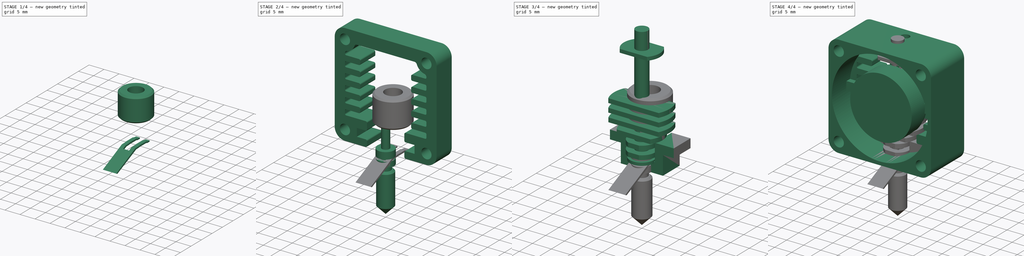
[diagram: build sequence overview — one tinted view per stage of 4, left to right]
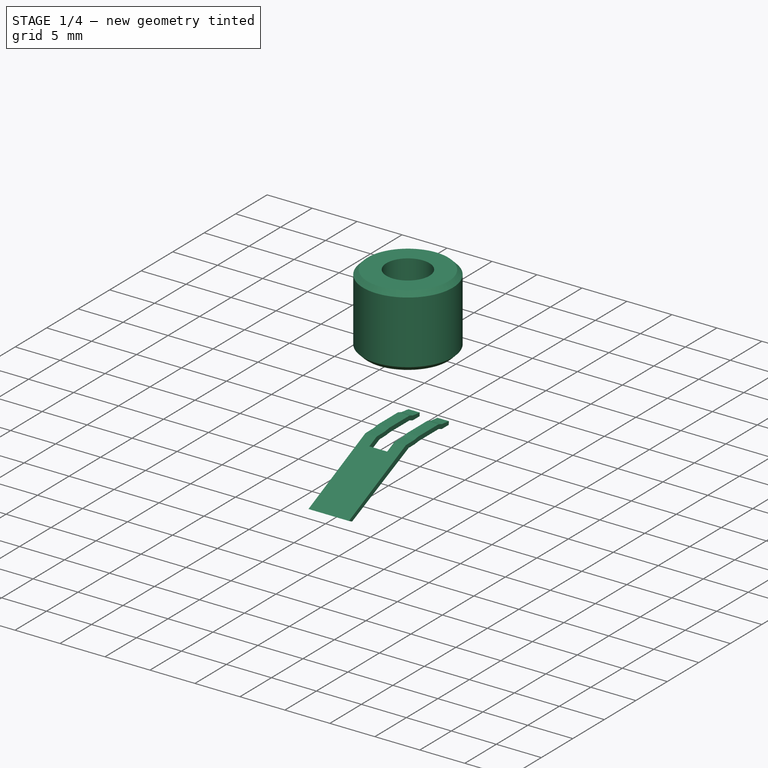
[diagram: stage 1 of 4 — iso view after this stage's code; geometry added in this stage tinted green]
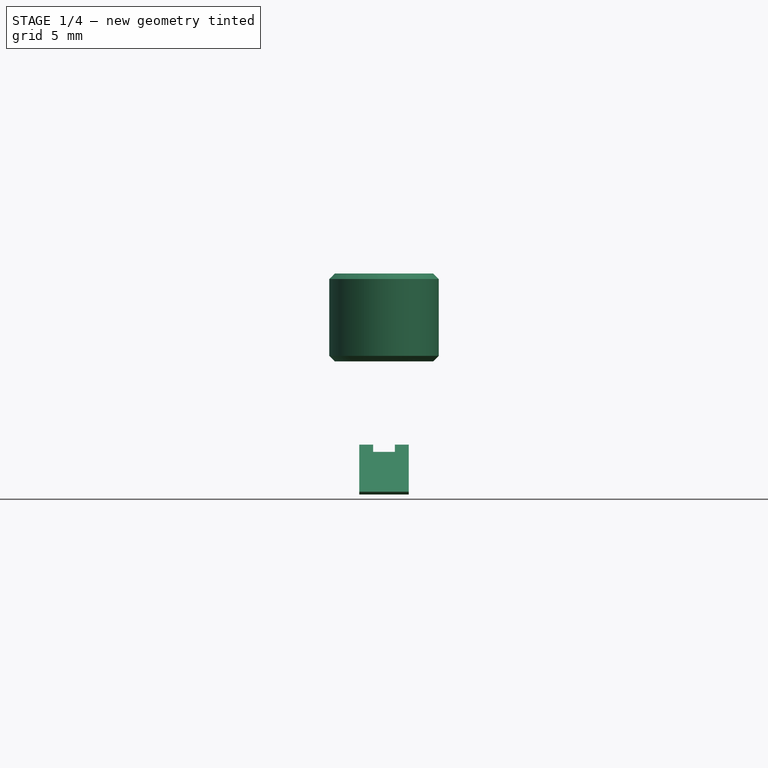
[diagram: stage 1 of 4 — front view after this stage's code; geometry added in this stage tinted green]
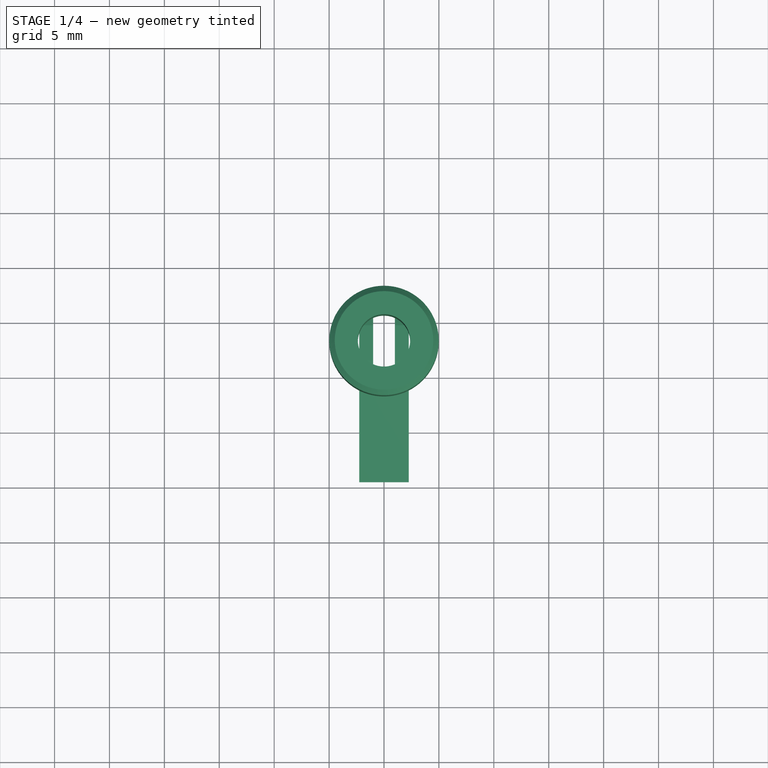
[diagram: stage 1 of 4 — top view after this stage's code; geometry added in this stage tinted green]
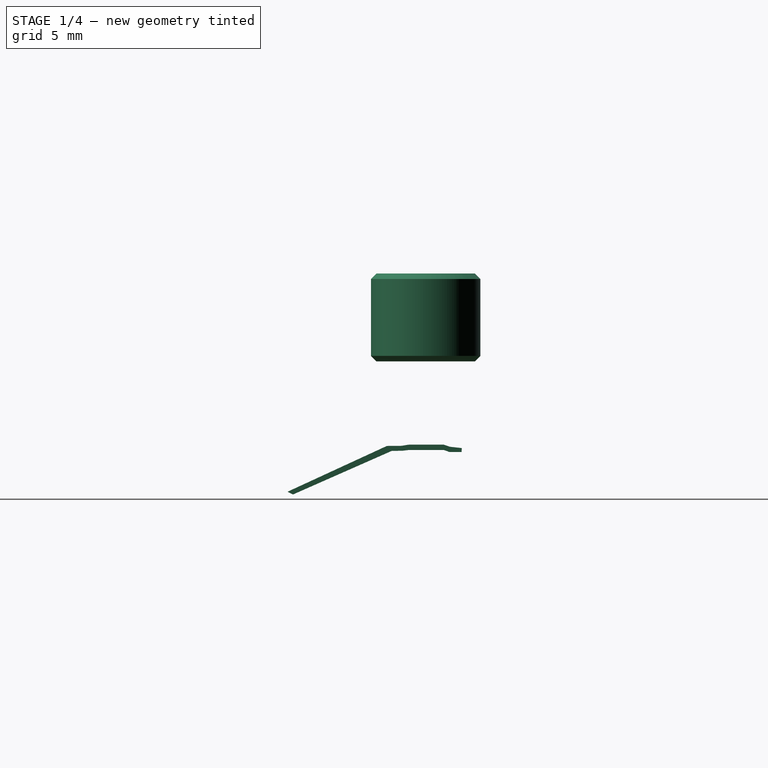
[diagram: stage 1 of 4 — right view after this stage's code; geometry added in this stage tinted green]
FCSTD DOCUMENT  (FreeCAD 0.21R33771 (Git))
Label: QuickChange_HotEnd
License: All rights reserved
LicenseURL: http://en.wikipedia.org/wiki/All_rights_reserved
objects: Sketcher::SketchObject×13, PartDesign::Body×8, PartDesign::Pad×7, PartDesign::Pocket×3, PartDesign::Revolution×2, PartDesign::Chamfer×2, Spreadsheet::Sheet×1, App::DocumentObjectGroup×1
note: 49 computed .brp shape members not serialized (recipe doc carries the construction recipe); baked Part::Feature solids carry a one-line shape summary decoded from their .brp

FEATURE [PartDesign::Body] Body004  label="Body"
  Group = -> [Sketch009,Revolution001,Chamfer]
  Origin = -> Origin004
  Placement = pos=(0,3.175,0) rot=(0,0,1;0rad)
  Tip = -> Chamfer
  expr: .Placement.Base.y = Pad003.Length / 2
FEATURE [Sketcher::SketchObject] Sketch010
  FullyConstrained = false
  MapMode = 5
  Placement = pos=(0,0,0) rot=(0.57735,0.57735,0.57735;2.0944rad)
  Support = -> [YZ_Plane005]
  sketch-geometry (19):
    g0: LineSegment StartX=6.36348 StartY=-16.2543 StartZ=0 EndX=5.26629 EndY=-16.2543 EndZ=0
    g1: LineSegment StartX=5.26629 StartY=-16.2543 StartZ=0 EndX=4.74664 EndY=-16.0618 EndZ=0
    g2: LineSegment StartX=4.74664 StartY=-16.0618 StartZ=0 EndX=1.60628 EndY=-16.0618 EndZ=0
    g3: LineSegment StartX=1.60628 StartY=-16.0618 StartZ=0 EndX=0.955437 EndY=-16.1372 EndZ=0
    g4: LineSegment StartX=0.955437 StartY=-16.1372 StartZ=0 EndX=0.007265 EndY=-16.1474 EndZ=0
    g5: LineSegment StartX=6.38246 StartY=-15.8921 StartZ=0 EndX=5.28571 EndY=-15.7697 EndZ=0
    g6: LineSegment StartX=5.28571 StartY=-15.7697 StartZ=0 EndX=4.74664 EndY=-15.5823 EndZ=0
    g7: LineSegment StartX=4.74664 StartY=-15.5823 StartZ=0 EndX=1.54532 EndY=-15.5823 EndZ=0
    g8: LineSegment StartX=1.54532 StartY=-15.5823 StartZ=0 EndX=0.86803 EndY=-15.6876 EndZ=0
    g9: LineSegment StartX=0.86803 StartY=-15.6876 StartZ=0 EndX=-0.441877 EndY=-15.6983 EndZ=0
    g10: LineSegment StartX=-0.441877 StartY=-15.6983 StartZ=0 EndX=-9.48234 EndY=-19.8651 EndZ=0
    g11: LineSegment StartX=-9.48234 StartY=-19.8651 StartZ=0 EndX=-8.9833 EndY=-20.1146 EndZ=0
    g12: LineSegment StartX=-8.9833 StartY=-20.1146 StartZ=0 EndX=0.007265 EndY=-16.1474 EndZ=0
    g13: LineSegment StartX=6.36348 StartY=-16.2543 StartZ=0 EndX=6.38246 EndY=-15.8921 EndZ=0
    g14: LineSegment StartX=5.28571 StartY=-15.7697 StartZ=0 EndX=5.26629 EndY=-16.2543 EndZ=0
    g15: LineSegment StartX=4.74664 StartY=-16.0618 StartZ=0 EndX=4.74664 EndY=-15.5823 EndZ=0
    g16: LineSegment StartX=1.60628 StartY=-16.0618 StartZ=0 EndX=1.54532 EndY=-15.5823 EndZ=0
    g17: LineSegment StartX=0.86803 StartY=-15.6876 StartZ=0 EndX=0.955437 EndY=-16.1372 EndZ=0
    g18: LineSegment StartX=0.007265 StartY=-16.1474 StartZ=0 EndX=-0.441877 EndY=-15.6983 EndZ=0
  constraints (28):
    c: Horizontal(g0)
    c: Coincident(g1,g0)
    c: Coincident(g2,g1)
    c: Horizontal(g2)
    c: Coincident(g3,g2)
    c: Coincident(g4,g3)
    c: Coincident(g6,g5)
    c: Coincident(g7,g6)
    c: Horizontal(g7)
    c: Coincident(g8,g7)
    c: Coincident(g9,g8)
    c: Coincident(g10,g9)
    c: Coincident(g11,g10)
    c: Coincident(g12,g11)
    c: Coincident(g12,g4)
    c: Coincident(g13,g0)
    c: Coincident(g13,g5)
    c: Coincident(g14,g5)
    c: Coincident(g14,g0)
    c: Coincident(g15,g1)
    c: Coincident(g15,g6)
    c: Vertical(g15)
    c: Coincident(g16,g2)
    c: Coincident(g16,g7)
    c: Coincident(g17,g8)
    c: Coincident(g17,g3)
    c: Coincident(g18,g4)
    c: Coincident(g18,g9)
FEATURE [PartDesign::Pad] Pad005
  Direction = (1,-2e-16,3e-16)
  Length = 2.25
  Length2 = 2.25
  Placement = pos=(0,0,0) rot=(0.57735,0.57735,0.57735;2.0944rad)
  Profile = -> Sketch010
  ReferenceAxis = -> Sketch010 [N_Axis]
  Type = 4
  expr: Length2 = Length
FEATURE [Sketcher::SketchObject] Sketch011
  FullyConstrained = false
  MapMode = 5
  Support = -> [XY_Plane005]
  sketch-geometry (5):
    g0: LineSegment StartX=-0.988916 StartY=-1.61169 StartZ=0 EndX=-0.988916 EndY=6.67708 EndZ=0
    g1: LineSegment StartX=-0.988916 StartY=6.67708 StartZ=0 EndX=0.988916 EndY=6.67708 EndZ=0
    g2: LineSegment StartX=0.988916 StartY=6.67708 StartZ=0 EndX=0.988916 EndY=-1.61169 EndZ=0
    g3: LineSegment StartX=0.988916 StartY=-1.61169 StartZ=0 EndX=-0.988916 EndY=-1.61169 EndZ=0
    g4: GeomPoint X=0 Y=2.5327 Z=0
  constraints (10):
    c: Coincident(g0,g1)
    c: Coincident(g1,g2)
    c: Coincident(g2,g3)
    c: Coincident(g3,g0)
    c: Horizontal(g1)
    c: Horizontal(g3)
    c: Vertical(g0)
    c: Vertical(g2)
    c: Symmetric(g1,g0,g4)
    c: PointOnObject(g4,g-2)
FEATURE [PartDesign::Pocket] Pocket002
  BaseFeature = -> Pad005
  Direction = (0,0,-1)
  Length = 5
  Length2 = 5
  Placement = pos=(0,0,0) rot=(0.57735,0.57735,0.57735;2.0944rad)
  Profile = -> Sketch011
  ReferenceAxis = -> Sketch011 [N_Axis]
  Type = 1
FEATURE [PartDesign::Body] Body005
  Group = -> [Sketch010,Pad005,Sketch011,Pocket002]
  Origin = -> Origin005
  Tip = -> Pocket002
FEATURE [Sketcher::SketchObject] Sketch012
  FullyConstrained = false
  MapMode = 5
  Support = -> [XY_Plane006]
  sketch-geometry (2):
    g0: Circle CenterX=0 CenterY=3.09632 CenterZ=0 NormalX=0 NormalY=0 NormalZ=1 AngleXU=0 Radius=4.98242
    g1: Circle CenterX=0 CenterY=3.09632 CenterZ=0 NormalX=0 NormalY=0 NormalZ=1 AngleXU=0 Radius=2.38607
  constraints (2):
    c: PointOnObject(g0,g-2)
    c: Coincident(g1,g0)
FEATURE [PartDesign::Pad] Pad006
  Direction = (0,0,1)
  Length = 8
  Length2 = 10
  Profile = -> Sketch012
  ReferenceAxis = -> Sketch012 [N_Axis]
  Reversed = true
  Type = 0
FEATURE [PartDesign::Chamfer] Chamfer001
  Angle = 45
  Base = -> Pad006 [Edge2,Edge3]
  BaseFeature = -> Pad006
  ChamferType = 0
  FlipDirection = false
  Size = 0.5
  Size2 = 1
  SupportTransform = false
  UseAllEdges = false
FEATURE [PartDesign::Body] Body006
  Group = -> [Sketch012,Pad006,Chamfer001]
  Origin = -> Origin006
  Placement = pos=(0,0,-20) rot=(0,0,1;0rad)
  Tip = -> Chamfer001
FEATURE [App::DocumentObjectGroup] Group
  Group = -> [Body003,Body004,Body005,Body006,Body002]
FEATURE [Sketcher::SketchObject] Sketch013
  FullyConstrained = true
  MapMode = 5
  Placement = pos=(0,0,0) rot=(1,0,0;1.5708rad)
  Support = -> [XZ_Plane007]
FEATURE [PartDesign::Body] Body007
  Group = -> [Sketch013]
  Origin = -> Origin007
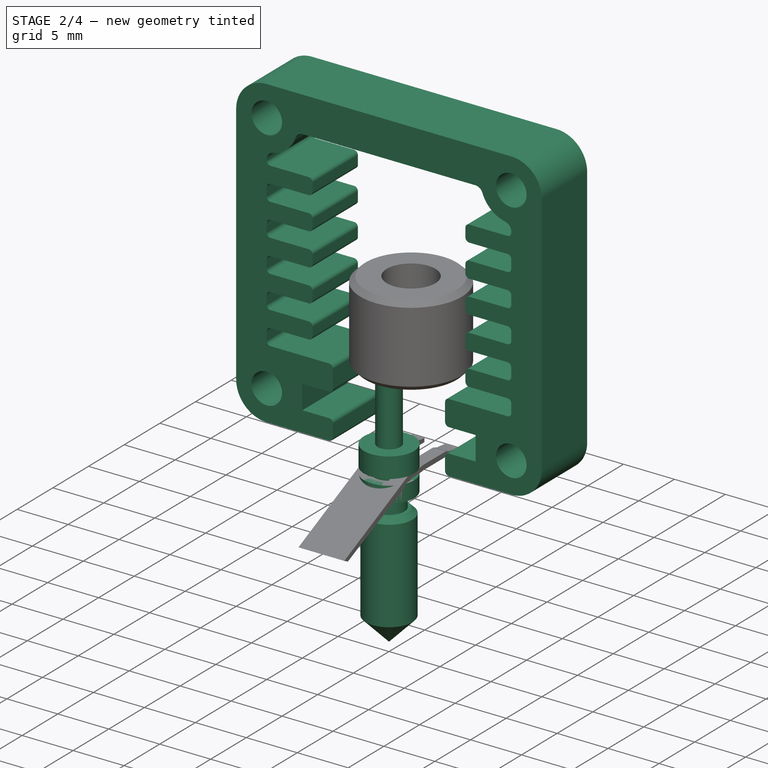
[diagram: stage 2 of 4 — iso view after this stage's code; geometry added in this stage tinted green]
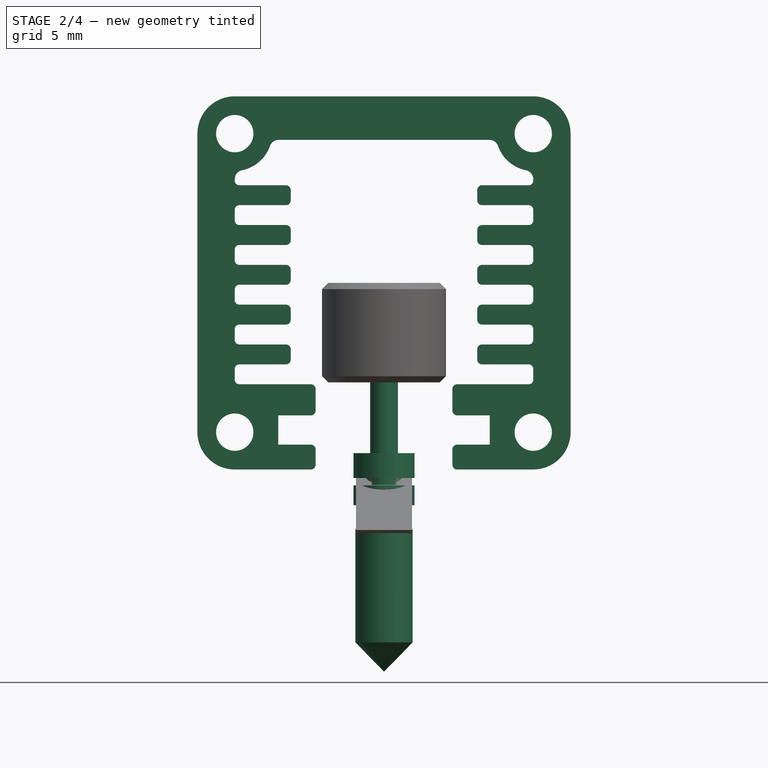
[diagram: stage 2 of 4 — front view after this stage's code; geometry added in this stage tinted green]
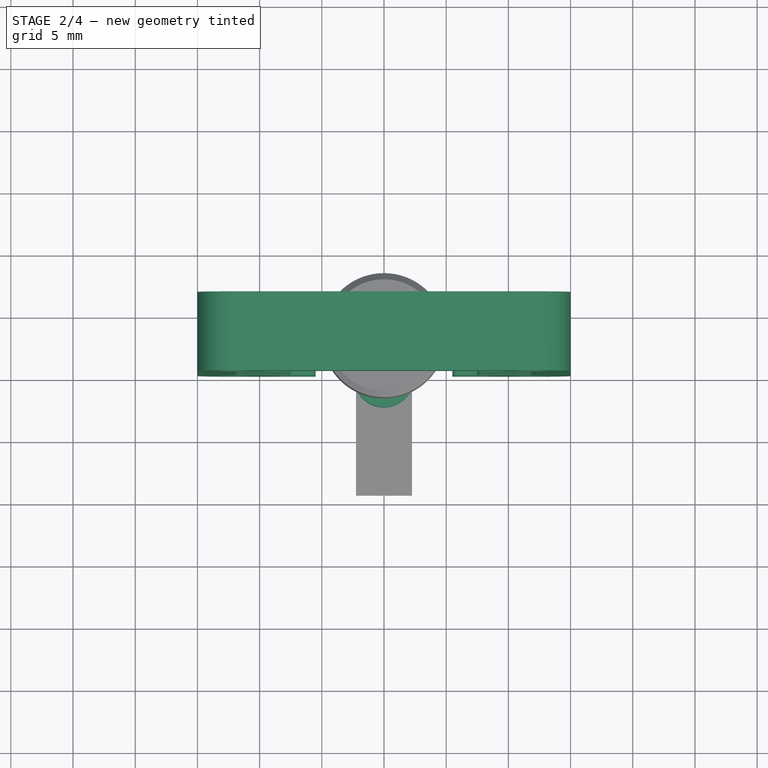
[diagram: stage 2 of 4 — top view after this stage's code; geometry added in this stage tinted green]
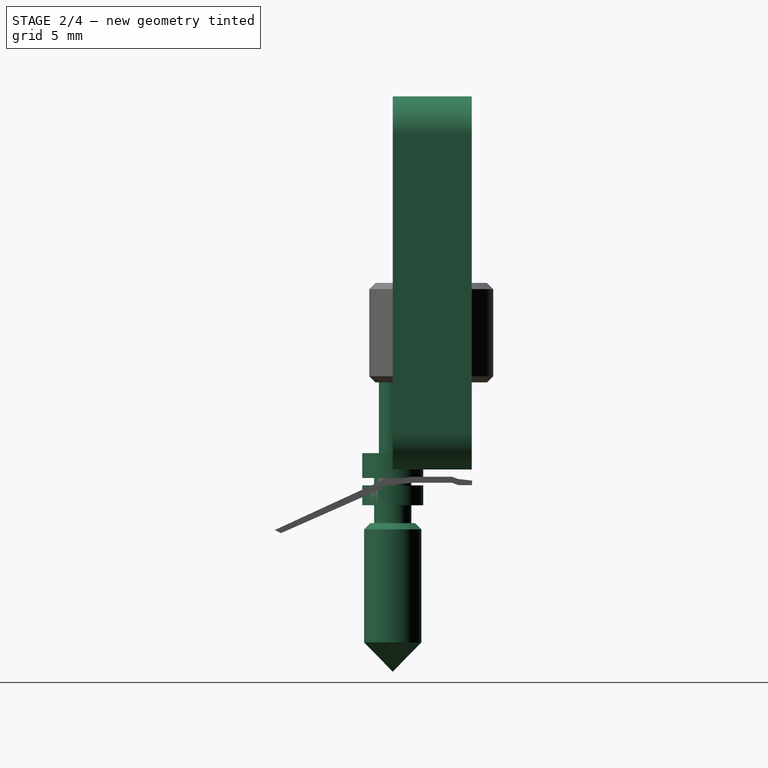
[diagram: stage 2 of 4 — right view after this stage's code; geometry added in this stage tinted green]
FEATURE [PartDesign::Body] Body  label="Fan"
  Group = -> [Sketch,Pad,Sketch001,Pad001,Sketch002,Pad002]
  Origin = -> Origin
  Tip = -> Pad002
FEATURE [Sketcher::SketchObject] Sketch004
  FullyConstrained = true
  MapMode = 5
  Placement = pos=(0,0,0) rot=(1,0,0;1.5708rad)
  Support = -> [XZ_Plane001]
  sketch-geometry (157):
    g0: ArcOfCircle CenterX=12 CenterY=12 CenterZ=0 NormalX=0 NormalY=0 NormalZ=1 AngleXU=0 Radius=3 StartAngle=3e-16 EndAngle=1.5708
    g1: LineSegment StartX=15 StartY=12 StartZ=0 EndX=15 EndY=-12 EndZ=0
    g2: ArcOfCircle CenterX=12 CenterY=-12 CenterZ=0 NormalX=0 NormalY=0 NormalZ=1 AngleXU=0 Radius=3 StartAngle=4.71239 EndAngle=6.28319
    g3: LineSegment StartX=-12 StartY=-15 StartZ=0 EndX=12 EndY=-15 EndZ=0
    g4: LineSegment StartX=7 StartY=-13.4 StartZ=0 EndX=7 EndY=-11.05 EndZ=0
    g5: LineSegment StartX=7 StartY=-11.05 StartZ=0 EndX=4.75 EndY=-11.05 EndZ=0
    g6: LineSegment StartX=4.5 StartY=-10.8 StartZ=0 EndX=4.5 EndY=-9.3 EndZ=0
    g7: LineSegment StartX=4.75 StartY=-9.05 StartZ=0 EndX=11.75 EndY=-9.05 EndZ=0
    g8: LineSegment StartX=12 StartY=-8.8 StartZ=0 EndX=12 EndY=-7.7 EndZ=0
    g9: ArcOfCircle CenterX=11.75 CenterY=-8.8 CenterZ=0 NormalX=0 NormalY=0 NormalZ=1 AngleXU=0 Radius=0.25 StartAngle=4.71239 EndAngle=6.28319
    g10: GeomPoint X=12 Y=-9.05 Z=0
    g11: LineSegment StartX=11.75 StartY=-7.45 StartZ=0 EndX=7.75 EndY=-7.45 EndZ=0
    g12: ArcOfCircle CenterX=11.75 CenterY=-7.7 CenterZ=0 NormalX=0 NormalY=0 NormalZ=1 AngleXU=0 Radius=0.25 StartAngle=-9e-16 EndAngle=1.5708
    g13: GeomPoint X=12 Y=-7.45 Z=0
    g14: ArcOfCircle CenterX=4.75 CenterY=-9.3 CenterZ=0 NormalX=0 NormalY=0 NormalZ=1 AngleXU=0 Radius=0.25 StartAngle=1.5708 EndAngle=3.14159
    g15: GeomPoint X=4.5 Y=-9.05 Z=0
    g16: ArcOfCircle CenterX=4.75 CenterY=-10.8 CenterZ=0 NormalX=0 NormalY=0 NormalZ=1 AngleXU=0 Radius=0.25 StartAngle=3.14159 EndAngle=4.71239
    g17: GeomPoint X=4.5 Y=-11.05 Z=0
    g18: LineSegment StartX=7.5 StartY=-7.2 StartZ=0 EndX=7.5 EndY=-6.1 EndZ=0
    g19: ArcOfCircle CenterX=7.75 CenterY=-7.2 CenterZ=0 NormalX=0 NormalY=0 NormalZ=1 AngleXU=0 Radius=0.25 StartAngle=3.14159 EndAngle=4.71239
    g20: GeomPoint X=7.5 Y=-7.45 Z=0
    g21: LineSegment StartX=7.75 StartY=-5.85 StartZ=0 EndX=11.75 EndY=-5.85 EndZ=0
    g22: ArcOfCircle CenterX=7.75 CenterY=-6.1 CenterZ=0 NormalX=0 NormalY=0 NormalZ=1 AngleXU=0 Radius=0.25 StartAngle=1.5708 EndAngle=3.14159
    g23: GeomPoint X=7.5 Y=-5.85 Z=0
    g24: LineSegment StartX=12 StartY=15 StartZ=0 EndX=0 EndY=15 EndZ=0
    g25: LineSegment StartX=12 StartY=-5.6 StartZ=0 EndX=12 EndY=-4.5 EndZ=0
    g26: ArcOfCircle CenterX=11.75 CenterY=-5.6 CenterZ=0 NormalX=0 NormalY=0 NormalZ=1 AngleXU=0 Radius=0.25 StartAngle=4.71239 EndAngle=6.28319
    g27: LineSegment StartX=11.75 StartY=-4.25 StartZ=0 EndX=7.75 EndY=-4.25 EndZ=0
    g28: ArcOfCircle CenterX=11.75 CenterY=-4.5 CenterZ=0 NormalX=0 NormalY=0 NormalZ=1 AngleXU=0 Radius=0.25 StartAngle=1.6e-15 EndAngle=1.5708
    g29: GeomPoint X=12 Y=-4.25 Z=0
    g30: LineSegment StartX=7.5 StartY=-4 StartZ=0 EndX=7.5 EndY=-2.9 EndZ=0
    g31: ArcOfCircle CenterX=7.75 CenterY=-4 CenterZ=0 NormalX=0 NormalY=0 NormalZ=1 AngleXU=0 Radius=0.25 StartAngle=3.14159 EndAngle=4.71239
    g32: GeomPoint X=7.5 Y=-4.25 Z=0
    g33: LineSegment StartX=7.75 StartY=-2.65 StartZ=0 EndX=11.75 EndY=-2.65 EndZ=0
    g34: ArcOfCircle CenterX=7.75 CenterY=-2.9 CenterZ=0 NormalX=0 NormalY=0 NormalZ=1 AngleXU=0 Radius=0.25 StartAngle=1.5708 EndAngle=3.14159
    g35: GeomPoint X=7.5 Y=-2.65 Z=0
    g36: LineSegment StartX=12 StartY=-2.4 StartZ=0 EndX=12 EndY=-1.3 EndZ=0
    g37: ArcOfCircle CenterX=11.75 CenterY=-2.4 CenterZ=0 NormalX=0 NormalY=0 NormalZ=1 AngleXU=0 Radius=0.25 StartAngle=4.71239 EndAngle=6.28319
    g38: LineSegment StartX=11.75 StartY=-1.05 StartZ=0 EndX=7.75 EndY=-1.05 EndZ=0
    g39: ArcOfCircle CenterX=11.75 CenterY=-1.3 CenterZ=0 NormalX=0 NormalY=0 NormalZ=1 AngleXU=0 Radius=0.25 StartAngle=0 EndAngle=1.5708
    g40: GeomPoint X=12 Y=-1.05 Z=0
    g41: LineSegment StartX=7.5 StartY=-0.8 StartZ=0 EndX=7.5 EndY=0.3 EndZ=0
    g42: ArcOfCircle CenterX=7.75 CenterY=-0.8 CenterZ=0 NormalX=0 NormalY=0 NormalZ=1 AngleXU=0 Radius=0.25 StartAngle=3.14159 EndAngle=4.71239
    g43: GeomPoint X=7.5 Y=-1.05 Z=0
    g44: LineSegment StartX=7.75 StartY=0.55 StartZ=0 EndX=11.75 EndY=0.55 EndZ=0
    g45: ArcOfCircle CenterX=7.75 CenterY=0.3 CenterZ=0 NormalX=0 NormalY=0 NormalZ=1 AngleXU=0 Radius=0.25 StartAngle=1.5708 EndAngle=3.14159
    g46: GeomPoint X=7.5 Y=0.55 Z=0
    g47: LineSegment StartX=12 StartY=0.8 StartZ=0 EndX=12 EndY=1.9 EndZ=0
    g48: ArcOfCircle CenterX=11.75 CenterY=0.8 CenterZ=0 NormalX=0 NormalY=0 NormalZ=1 AngleXU=0 Radius=0.25 StartAngle=4.71239 EndAngle=6.28319
    g49: LineSegment StartX=11.75 StartY=2.15 StartZ=0 EndX=7.75 EndY=2.15 EndZ=0
    g50: ArcOfCircle CenterX=11.75 CenterY=1.9 CenterZ=0 NormalX=0 NormalY=0 NormalZ=1 AngleXU=0 Radius=0.25 StartAngle=0 EndAngle=1.5708
    g51: GeomPoint X=12 Y=2.15 Z=0
    g52: LineSegment StartX=7.5 StartY=2.4 StartZ=0 EndX=7.5 EndY=3.5 EndZ=0
    g53: ArcOfCircle CenterX=7.75 CenterY=2.4 CenterZ=0 NormalX=0 NormalY=0 NormalZ=1 AngleXU=0 Radius=0.25 StartAngle=3.14159 EndAngle=4.71239
    g54: GeomPoint X=7.5 Y=2.15 Z=0
    g55: LineSegment StartX=7.75 StartY=3.75 StartZ=0 EndX=11.75 EndY=3.75 EndZ=0
    g56: ArcOfCircle CenterX=7.75 CenterY=3.5 CenterZ=0 NormalX=0 NormalY=0 NormalZ=1 AngleXU=0 Radius=0.25 StartAngle=1.5708 EndAngle=3.14159
    g57: GeomPoint X=7.5 Y=3.75 Z=0
    g58: LineSegment StartX=12 StartY=4 StartZ=0 EndX=12 EndY=5.1 EndZ=0
    g59: ArcOfCircle CenterX=11.75 CenterY=4 CenterZ=0 NormalX=0 NormalY=0 NormalZ=1 AngleXU=0 Radius=0.25 StartAngle=4.71239 EndAngle=6.28319
    g60: LineSegment StartX=11.75 StartY=5.35 StartZ=0 EndX=7.75 EndY=5.35 EndZ=0
    g61: ArcOfCircle CenterX=11.75 CenterY=5.1 CenterZ=0 NormalX=0 NormalY=0 NormalZ=1 AngleXU=0 Radius=0.25 StartAngle=5e-16 EndAngle=1.5708
    g62: GeomPoint X=12 Y=5.35 Z=0
    g63: LineSegment StartX=7.5 StartY=5.6 StartZ=0 EndX=7.5 EndY=6.7 EndZ=0
    g64: ArcOfCircle CenterX=7.75 CenterY=5.6 CenterZ=0 NormalX=0 NormalY=0 NormalZ=1 AngleXU=0 Radius=0.25 StartAngle=3.14159 EndAngle=4.71239
    g65: GeomPoint X=7.5 Y=5.35 Z=0
    g66: LineSegment StartX=7.75 StartY=6.95 StartZ=0 EndX=11.75 EndY=6.95 EndZ=0
    g67: ArcOfCircle CenterX=7.75 CenterY=6.7 CenterZ=0 NormalX=0 NormalY=0 NormalZ=1 AngleXU=0 Radius=0.25 StartAngle=1.5708 EndAngle=3.14159
    g68: GeomPoint X=7.5 Y=6.95 Z=0
    g69: ArcOfCircle CenterX=11.75 CenterY=7.2 CenterZ=0 NormalX=0 NormalY=0 NormalZ=1 AngleXU=0 Radius=0.25 StartAngle=4.71239 EndAngle=6.28319
    g70: LineSegment StartX=12 StartY=7.2 StartZ=0 EndX=12 EndY=8.32577 EndZ=0
    g71: LineSegment StartX=8.46447 StartY=11.5 StartZ=0 EndX=0 EndY=11.5 EndZ=0
    g72: ArcOfCircle CenterX=-12 CenterY=12 CenterZ=0 NormalX=0 NormalY=0 NormalZ=1 AngleXU=0 Radius=3 StartAngle=1.5708 EndAngle=3.14159
    g73: LineSegment StartX=-15 StartY=12 StartZ=0 EndX=-15 EndY=-12 EndZ=0
    g74: ArcOfCircle CenterX=-12 CenterY=-12 CenterZ=0 NormalX=0 NormalY=0 NormalZ=1 AngleXU=0 Radius=3 StartAngle=3.14159 EndAngle=4.71239
    g75: LineSegment StartX=-7 StartY=-13.4 StartZ=0 EndX=-7 EndY=-11.05 EndZ=0
    g76: LineSegment StartX=-7 StartY=-11.05 StartZ=0 EndX=-4.75 EndY=-11.05 EndZ=0
    g77: LineSegment StartX=-4.5 StartY=-10.8 StartZ=0 EndX=-4.5 EndY=-9.3 EndZ=0
    g78: LineSegment StartX=-4.75 StartY=-9.05 StartZ=0 EndX=-11.75 EndY=-9.05 EndZ=0
    g79: LineSegment StartX=-12 StartY=-8.8 StartZ=0 EndX=-12 EndY=-7.7 EndZ=0
    g80: ArcOfCircle CenterX=-11.75 CenterY=-8.8 CenterZ=0 NormalX=0 NormalY=0 NormalZ=1 AngleXU=0 Radius=0.25 StartAngle=3.14159 EndAngle=4.71239
    g81: GeomPoint X=-12 Y=-9.05 Z=0
    g82: LineSegment StartX=-11.75 StartY=-7.45 StartZ=0 EndX=-7.75 EndY=-7.45 EndZ=0
    g83: ArcOfCircle CenterX=-11.75 CenterY=-7.7 CenterZ=0 NormalX=0 NormalY=0 NormalZ=1 AngleXU=0 Radius=0.25 StartAngle=1.5708 EndAngle=3.14159
    g84: GeomPoint X=-12 Y=-7.45 Z=0
    g85: ArcOfCircle CenterX=-4.75 CenterY=-9.3 CenterZ=0 NormalX=0 NormalY=0 NormalZ=1 AngleXU=0 Radius=0.25 StartAngle=-1.8e-15 EndAngle=1.5708
    g86: GeomPoint X=-4.5 Y=-9.05 Z=0
    g87: ArcOfCircle CenterX=-4.75 CenterY=-10.8 CenterZ=0 NormalX=0 NormalY=0 NormalZ=1 AngleXU=0 Radius=0.25 StartAngle=4.71239 EndAngle=6.28319
    g88: GeomPoint X=-4.5 Y=-11.05 Z=0
    g89: LineSegment StartX=-7.5 StartY=-7.2 StartZ=0 EndX=-7.5 EndY=-6.1 EndZ=0
    g90: ArcOfCircle CenterX=-7.75 CenterY=-7.2 CenterZ=0 NormalX=0 NormalY=0 NormalZ=1 AngleXU=0 Radius=0.25 StartAngle=4.71239 EndAngle=6.28319
    g91: GeomPoint X=-7.5 Y=-7.45 Z=0
    g92: LineSegment StartX=-7.75 StartY=-5.85 StartZ=0 EndX=-11.75 EndY=-5.85 EndZ=0
    g93: ArcOfCircle CenterX=-7.75 CenterY=-6.1 CenterZ=0 NormalX=0 NormalY=0 NormalZ=1 AngleXU=0 Radius=0.25 StartAngle=1.6e-15 EndAngle=1.5708
    g94: GeomPoint X=-7.5 Y=-5.85 Z=0
    g95: LineSegment StartX=-12 StartY=15 StartZ=0 EndX=0 EndY=15 EndZ=0
    g96: LineSegment StartX=-12 StartY=-5.6 StartZ=0 EndX=-12 EndY=-4.5 EndZ=0
    g97: ArcOfCircle CenterX=-11.75 CenterY=-5.6 CenterZ=0 NormalX=0 NormalY=0 NormalZ=1 AngleXU=0 Radius=0.25 StartAngle=3.14159 EndAngle=4.71239
    g98: LineSegment StartX=-11.75 StartY=-4.25 StartZ=0 EndX=-7.75 EndY=-4.25 EndZ=0
    g99: ArcOfCircle CenterX=-11.75 CenterY=-4.5 CenterZ=0 NormalX=0 NormalY=0 NormalZ=1 AngleXU=0 Radius=0.25 StartAngle=1.5708 EndAngle=3.14159
    g100: GeomPoint X=-12 Y=-4.25 Z=0
    g101: LineSegment StartX=-7.5 StartY=-4 StartZ=0 EndX=-7.5 EndY=-2.9 EndZ=0
    g102: ArcOfCircle CenterX=-7.75 CenterY=-4 CenterZ=0 NormalX=0 NormalY=0 NormalZ=1 AngleXU=0 Radius=0.25 StartAngle=4.71239 EndAngle=6.28319
    g103: GeomPoint X=-7.5 Y=-4.25 Z=0
    g104: LineSegment StartX=-7.75 StartY=-2.65 StartZ=0 EndX=-11.75 EndY=-2.65 EndZ=0
    g105: ArcOfCircle CenterX=-7.75 CenterY=-2.9 CenterZ=0 NormalX=0 NormalY=0 NormalZ=1 AngleXU=0 Radius=0.25 StartAngle=0 EndAngle=1.5708
    g106: GeomPoint X=-7.5 Y=-2.65 Z=0
    g107: LineSegment StartX=-12 StartY=-2.4 StartZ=0 EndX=-12 EndY=-1.3 EndZ=0
    g108: ArcOfCircle CenterX=-11.75 CenterY=-2.4 CenterZ=0 NormalX=0 NormalY=0 NormalZ=1 AngleXU=0 Radius=0.25 StartAngle=3.14159 EndAngle=4.71239
    g109: LineSegment StartX=-11.75 StartY=-1.05 StartZ=0 EndX=-7.75 EndY=-1.05 EndZ=0
    g110: ArcOfCircle CenterX=-11.75 CenterY=-1.3 CenterZ=0 NormalX=0 NormalY=0 NormalZ=1 AngleXU=0 Radius=0.25 StartAngle=1.5708 EndAngle=3.14159
    g111: GeomPoint X=-12 Y=-1.05 Z=0
    g112: LineSegment StartX=-7.5 StartY=-0.8 StartZ=0 EndX=-7.5 EndY=0.3 EndZ=0
    g113: ArcOfCircle CenterX=-7.75 CenterY=-0.8 CenterZ=0 NormalX=0 NormalY=0 NormalZ=1 AngleXU=0 Radius=0.25 StartAngle=4.71239 EndAngle=6.28319
    g114: GeomPoint X=-7.5 Y=-1.05 Z=0
    g115: LineSegment StartX=-7.75 StartY=0.55 StartZ=0 EndX=-11.75 EndY=0.55 EndZ=0
    g116: ArcOfCircle CenterX=-7.75 CenterY=0.3 CenterZ=0 NormalX=0 NormalY=0 NormalZ=1 AngleXU=0 Radius=0.25 StartAngle=0 EndAngle=1.5708
    g117: GeomPoint X=-7.5 Y=0.55 Z=0
    g118: LineSegment StartX=-12 StartY=0.8 StartZ=0 EndX=-12 EndY=1.9 EndZ=0
    g119: ArcOfCircle CenterX=-11.75 CenterY=0.8 CenterZ=0 NormalX=0 NormalY=0 NormalZ=1 AngleXU=0 Radius=0.25 StartAngle=3.14159 EndAngle=4.71239
    g120: LineSegment StartX=-11.75 StartY=2.15 StartZ=0 EndX=-7.75 EndY=2.15 EndZ=0
    g121: ArcOfCircle CenterX=-11.75 CenterY=1.9 CenterZ=0 NormalX=0 NormalY=0 NormalZ=1 AngleXU=0 Radius=0.25 StartAngle=1.5708 EndAngle=3.14159
    g122: GeomPoint X=-12 Y=2.15 Z=0
    g123: LineSegment StartX=-7.5 StartY=2.4 StartZ=0 EndX=-7.5 EndY=3.5 EndZ=0
    g124: ArcOfCircle CenterX=-7.75 CenterY=2.4 CenterZ=0 NormalX=0 NormalY=0 NormalZ=1 AngleXU=0 Radius=0.25 StartAngle=4.71239 EndAngle=6.28319
    g125: GeomPoint X=-7.5 Y=2.15 Z=0
    g126: LineSegment StartX=-7.75 StartY=3.75 StartZ=0 EndX=-11.75 EndY=3.75 EndZ=0
    g127: ArcOfCircle CenterX=-7.75 CenterY=3.5 CenterZ=0 NormalX=0 NormalY=0 NormalZ=1 AngleXU=0 Radius=0.25 StartAngle=7e-16 EndAngle=1.5708
    g128: GeomPoint X=-7.5 Y=3.75 Z=0
    g129: LineSegment StartX=-12 StartY=4 StartZ=0 EndX=-12 EndY=5.1 EndZ=0
    g130: ArcOfCircle CenterX=-11.75 CenterY=4 CenterZ=0 NormalX=0 NormalY=0 NormalZ=1 AngleXU=0 Radius=0.25 StartAngle=3.14159 EndAngle=4.71239
    g131: LineSegment StartX=-11.75 StartY=5.35 StartZ=0 EndX=-7.75 EndY=5.35 EndZ=0
    g132: ArcOfCircle CenterX=-11.75 CenterY=5.1 CenterZ=0 NormalX=0 NormalY=0 NormalZ=1 AngleXU=0 Radius=0.25 StartAngle=1.5708 EndAngle=3.14159
    g133: GeomPoint X=-12 Y=5.35 Z=0
    g134: LineSegment StartX=-7.5 StartY=5.6 StartZ=0 EndX=-7.5 EndY=6.7 EndZ=0
    g135: ArcOfCircle CenterX=-7.75 CenterY=5.6 CenterZ=0 NormalX=0 NormalY=0 NormalZ=1 AngleXU=0 Radius=0.25 StartAngle=4.71239 EndAngle=6.28319
    g136: GeomPoint X=-7.5 Y=5.35 Z=0
    g137: LineSegment StartX=-7.75 StartY=6.95 StartZ=0 EndX=-11.75 EndY=6.95 EndZ=0
    g138: ArcOfCircle CenterX=-7.75 CenterY=6.7 CenterZ=0 NormalX=0 NormalY=0 NormalZ=1 AngleXU=0 Radius=0.25 StartAngle=1.6e-15 EndAngle=1.5708
    g139: GeomPoint X=-7.5 Y=6.95 Z=0
    g140: ArcOfCircle CenterX=-11.75 CenterY=7.2 CenterZ=0 NormalX=0 NormalY=0 NormalZ=1 AngleXU=0 Radius=0.25 StartAngle=3.14159 EndAngle=4.71239
    g141: LineSegment StartX=-12 StartY=7.2 StartZ=0 EndX=-12 EndY=8.32577 EndZ=0
    g142: LineSegment StartX=-8.46447 StartY=11.5 StartZ=0 EndX=0 EndY=11.5 EndZ=0
    g143: ArcOfCircle CenterX=-12 CenterY=12 CenterZ=0 NormalX=0 NormalY=0 NormalZ=1 AngleXU=0 Radius=3 StartAngle=4.91375 EndAngle=5.94335
    g144: ArcOfCircle CenterX=-11.25 CenterY=8.32577 CenterZ=0 NormalX=0 NormalY=0 NormalZ=1 AngleXU=0 Radius=0.75 StartAngle=1.77215 EndAngle=3.14159
    g145: ArcOfCircle CenterX=-8.46447 CenterY=10.75 CenterZ=0 NormalX=0 NormalY=0 NormalZ=1 AngleXU=0 Radius=0.75 StartAngle=1.5708 EndAngle=2.80176
    g146: ArcOfCircle CenterX=12 CenterY=12 CenterZ=0 NormalX=0 NormalY=0 NormalZ=1 AngleXU=0 Radius=3 StartAngle=3.48143 EndAngle=4.51103
    g147: ArcOfCircle CenterX=8.46447 CenterY=10.75 CenterZ=0 NormalX=0 NormalY=0 NormalZ=1 AngleXU=0 Radius=0.75 StartAngle=0.339837 EndAngle=1.5708
    g148: ArcOfCircle CenterX=11.25 CenterY=8.32577 CenterZ=0 NormalX=0 NormalY=0 NormalZ=1 AngleXU=0 Radius=0.75 StartAngle=-9e-16 EndAngle=1.36944
    g149: Circle CenterX=-12 CenterY=12 CenterZ=0 NormalX=0 NormalY=0 NormalZ=1 AngleXU=0 Radius=1.5
    g150: Circle CenterX=12 CenterY=12 CenterZ=0 NormalX=0 NormalY=0 NormalZ=1 AngleXU=0 Radius=1.5
    g151: Circle CenterX=-12 CenterY=-12 CenterZ=0 NormalX=0 NormalY=0 NormalZ=1 AngleXU=0 Radius=1.5
    g152: Circle CenterX=12 CenterY=-12 CenterZ=0 NormalX=0 NormalY=0 NormalZ=1 AngleXU=0 Radius=1.5
    g153: LineSegment StartX=-7 StartY=-13.4 StartZ=0 EndX=-4.5 EndY=-13.4 EndZ=0
    g154: LineSegment StartX=4.5 StartY=-13.4 StartZ=0 EndX=7 EndY=-13.4 EndZ=0
    g155: LineSegment StartX=-4.5 StartY=-13.4 StartZ=0 EndX=-4.5 EndY=-15 EndZ=0
    g156: LineSegment StartX=4.5 StartY=-13.4 StartZ=0 EndX=4.5 EndY=-15 EndZ=0
  constraints (378):
    c: Coincident(g5,g4)
    c: DistanceY(g4,g4) = 2.35
    c: DistanceX(g20,g13) = 4.5
    c: Horizontal(g3)
    c: Horizontal(g5)
    c: Horizontal(g7)
    c: Horizontal(g11)
    c: Vertical(g1)
    c: Vertical(g4)
    c: Vertical(g6)
    c: Vertical(g8)
    c: Tangent(g2,g3) = -1.5708
    c: Tangent(g1,g2) = 1.5708
    c: Tangent(g0,g1) = 1.5708
    c: Diameter(g0) = 6
    c: Equal(g2,g0)
    c: Equal(g14,g9)
    c: Tangent(g8,g12) = -1.5708
    c: Tangent(g11,g12) = -1.5708
    c: Tangent(g8,g9) = -1.5708
    c: Tangent(g7,g9) = -1.5708
    c: Tangent(g7,g14) = 1.5708
    c: Tangent(g6,g14) = 1.5708
    c: Tangent(g6,g16) = 1.5708
    c: Tangent(g5,g16) = 1.5708
    c: PointOnObject(g17,g6)
    c: PointOnObject(g15,g7)
    c: PointOnObject(g15,g6)
    c: PointOnObject(g17,g5)
    c: PointOnObject(g10,g7)
    c: PointOnObject(g10,g8)
    c: PointOnObject(g13,g8)
    c: PointOnObject(g13,g11)
    c: DistanceY(g10,g13) = 1.6
    c: Vertical(g18)
    c: PointOnObject(g20,g11)
    c: PointOnObject(g20,g18)
    c: Tangent(g11,g19) = 1.5708
    c: Tangent(g18,g19) = 1.5708
    c: Equal(g19,g9)
    c: Horizontal(g21)
    c: PointOnObject(g23,g21)
    c: PointOnObject(g23,g18)
    c: Tangent(g21,g22) = 1.5708
    c: Tangent(g18,g22) = 1.5708
    c: Equal(g22,g19)
    c: Equal(g21,g11)
    c: DistanceY(g20,g23) = 1.6
    c: DistanceY(g17,g15) = 2
    c: DistanceX(g10,g1) = 3  'ref1'
    c: Coincident(g24,g0)
    c: PointOnObject(g24,g-2)
    c: Horizontal(g24)
    c: DistanceY(g2,g0) = 30
    c: Symmetric(g2,g0,g-1)
    c: DistanceX(g-1,g1) = 15
    c: Equal(g14,g16)
    c: Equal(g9,g12)
    c: Horizontal(g27)
    c: Vertical(g25)
    c: Tangent(g25,g28) = -1.5708
    c: Tangent(g27,g28) = -1.5708
    c: Tangent(g25,g26) = -1.5708
    c: PointOnObject(g29,g25)
    c: PointOnObject(g29,g27)
    c: Vertical(g30)
    c: PointOnObject(g32,g27)
    c: PointOnObject(g32,g30)
    c: Tangent(g27,g31) = 1.5708
    c: Tangent(g30,g31) = 1.5708
    c: Equal(g31,g26)
    c: Horizontal(g33)
    c: PointOnObject(g35,g33)
    c: PointOnObject(g35,g30)
    c: Tangent(g33,g34) = 1.5708
    c: Tangent(g30,g34) = 1.5708
    c: Equal(g34,g31)
    c: Equal(g33,g27)
    c: Equal(g26,g28)
    c: Equal(g26,g9)
    c: Tangent(g21,g26) = -1.5708
    c: Equal(g25,g8)
    c: Equal(g30,g18)
    c: Equal(g27,g21)
    c: Horizontal(g38)
    c: Vertical(g36)
    c: Tangent(g36,g39) = -1.5708
    c: Tangent(g38,g39) = -1.5708
    c: Tangent(g36,g37) = -1.5708
    c: PointOnObject(g40,g36)
    c: PointOnObject(g40,g38)
    c: Vertical(g41)
    c: PointOnObject(g43,g38)
    c: PointOnObject(g43,g41)
    c: Tangent(g38,g42) = 1.5708
    c: Tangent(g41,g42) = 1.5708
    c: Equal(g42,g37)
    c: Horizontal(g44)
    c: PointOnObject(g46,g44)
    c: PointOnObject(g46,g41)
    c: Tangent(g44,g45) = 1.5708
    c: Tangent(g41,g45) = 1.5708
    c: Equal(g45,g42)
    c: Equal(g44,g38)
    c: Equal(g37,g39)
    c: Equal(g37,g28)
    c: Equal(g38,g33)
    c: Equal(g36,g25)
    c: Equal(g30,g41)
    c: Tangent(g37,g33) = -1.5708
    c: Horizontal(g49)
    c: Vertical(g47)
    c: Tangent(g47,g50) = -1.5708
    c: Tangent(g49,g50) = -1.5708
    c: Tangent(g47,g48) = -1.5708
    c: PointOnObject(g51,g47)
    c: PointOnObject(g51,g49)
    c: Vertical(g52)
    c: PointOnObject(g54,g49)
    c: PointOnObject(g54,g52)
    c: Tangent(g49,g53) = 1.5708
    c: Tangent(g52,g53) = 1.5708
    c: Equal(g53,g48)
    c: Horizontal(g55)
    c: PointOnObject(g57,g55)
    c: PointOnObject(g57,g52)
    c: Tangent(g55,g56) = 1.5708
    c: Tangent(g52,g56) = 1.5708
    c: Equal(g56,g53)
    c: Equal(g55,g49)
    c: Equal(g48,g50)
    c: Horizontal(g60)
    c: Vertical(g58)
    c: Tangent(g58,g61) = -1.5708
    c: Tangent(g60,g61) = -1.5708
    c: Tangent(g58,g59) = -1.5708
    c: PointOnObject(g62,g58)
    c: PointOnObject(g62,g60)
    c: Vertical(g63)
    c: PointOnObject(g65,g60)
    c: PointOnObject(g65,g63)
    c: Tangent(g60,g64) = 1.5708
    c: Tangent(g63,g64) = 1.5708
    c: Equal(g64,g59)
    c: Horizontal(g66)
    c: PointOnObject(g68,g66)
    c: PointOnObject(g68,g63)
    c: Tangent(g66,g67) = 1.5708
    c: Tangent(g63,g67) = 1.5708
    c: Equal(g67,g64)
    c: Equal(g66,g60)
    c: Equal(g59,g61)
    c: Equal(g59,g50)
    c: Equal(g60,g55)
    c: Equal(g58,g47)
    c: Equal(g52,g63)
    c: Tangent(g59,g55) = -1.5708
    c: Equal(g47,g36)
    c: Equal(g52,g41)
    c: Tangent(g48,g44) = -1.5708
    c: Equal(g48,g39)
    c: Equal(g49,g44)
    c: Tangent(g69,g66) = -1.5708
    c: Equal(g61,g69)
    c: Vertical(g70)
    c: PointOnObject(g71,g-2)
    c: Horizontal(g71)
    c: Tangent(g70,g69) = -1.5708
    c: Coincident(g76,g75)
    c: Horizontal(g76)
    c: Horizontal(g78)
    c: Horizontal(g82)
    c: Vertical(g73)
    c: Vertical(g75)
    c: Vertical(g77)
    c: Vertical(g79)
    c: Tangent(g73,g74) = -1.5708
    c: Tangent(g72,g73) = -1.5708
    c: Diameter(g72) = 6
    c: Equal(g74,g72)
    c: Equal(g85,g80)
    c: Tangent(g79,g83) = 1.5708
    c: Tangent(g82,g83) = 1.5708
    c: Tangent(g79,g80) = 1.5708
    c: Tangent(g78,g80) = 1.5708
    c: Tangent(g78,g85) = -1.5708
    c: Tangent(g77,g85) = -1.5708
    c: Tangent(g77,g87) = -1.5708
    c: Tangent(g76,g87) = -1.5708
    c: PointOnObject(g88,g77)
    c: PointOnObject(g86,g78)
    c: PointOnObject(g86,g77)
    c: PointOnObject(g88,g76)
    c: PointOnObject(g81,g78)
    c: PointOnObject(g81,g79)
    c: PointOnObject(g84,g79)
    c: PointOnObject(g84,g82)
    c: Vertical(g89)
    c: PointOnObject(g91,g82)
    c: PointOnObject(g91,g89)
    c: Tangent(g82,g90) = -1.5708
    c: Tangent(g89,g90) = -1.5708
    c: Equal(g90,g80)
    c: Horizontal(g92)
    c: PointOnObject(g94,g92)
    c: PointOnObject(g94,g89)
    c: Tangent(g92,g93) = -1.5708
    c: Tangent(g89,g93) = -1.5708
    c: Equal(g93,g90)
    c: Equal(g92,g82)
    c: Coincident(g95,g72)
    c: Equal(g85,g87)
    c: Equal(g80,g83)
    c: Horizontal(g98)
    c: Vertical(g96)
    c: Tangent(g96,g99) = 1.5708
    c: Tangent(g98,g99) = 1.5708
    c: Tangent(g96,g97) = 1.5708
    c: PointOnObject(g100,g96)
    c: PointOnObject(g100,g98)
    c: Vertical(g101)
    c: PointOnObject(g103,g98)
    c: PointOnObject(g103,g101)
    c: Tangent(g98,g102) = -1.5708
    c: Tangent(g101,g102) = -1.5708
    c: Equal(g102,g97)
    c: Horizontal(g104)
    c: PointOnObject(g106,g104)
    c: PointOnObject(g106,g101)
    c: Tangent(g104,g105) = -1.5708
    c: Tangent(g101,g105) = -1.5708
    c: Equal(g105,g102)
    c: Equal(g104,g98)
    c: Equal(g97,g99)
    c: Equal(g97,g80)
    c: Tangent(g92,g97) = 1.5708
    c: Equal(g96,g79)
    c: Equal(g101,g89)
    c: Equal(g98,g92)
    c: Horizontal(g109)
    c: Vertical(g107)
    c: Tangent(g107,g110) = 1.5708
    c: Tangent(g109,g110) = 1.5708
    c: Tangent(g107,g108) = 1.5708
    c: PointOnObject(g111,g107)
    c: PointOnObject(g111,g109)
    c: Vertical(g112)
    c: PointOnObject(g114,g109)
    c: PointOnObject(g114,g112)
    c: Tangent(g109,g113) = -1.5708
    c: Tangent(g112,g113) = -1.5708
    c: Equal(g113,g108)
    c: Horizontal(g115)
    c: PointOnObject(g117,g115)
    c: PointOnObject(g117,g112)
    c: Tangent(g115,g116) = -1.5708
    c: Tangent(g112,g116) = -1.5708
    c: Equal(g116,g113)
    c: Equal(g115,g109)
    c: Equal(g108,g110)
    c: Equal(g108,g99)
    c: Equal(g109,g104)
    c: Equal(g107,g96)
    c: Equal(g101,g112)
    c: Tangent(g108,g104) = 1.5708
    c: Horizontal(g120)
    c: Vertical(g118)
    c: Tangent(g118,g121) = 1.5708
    c: Tangent(g120,g121) = 1.5708
    c: Tangent(g118,g119) = 1.5708
    c: PointOnObject(g122,g118)
    c: PointOnObject(g122,g120)
    c: Vertical(g123)
    c: PointOnObject(g125,g120)
    c: PointOnObject(g125,g123)
    c: Tangent(g120,g124) = -1.5708
    c: Tangent(g123,g124) = -1.5708
    c: Equal(g124,g119)
    c: Horizontal(g126)
    c: PointOnObject(g128,g126)
    c: PointOnObject(g128,g123)
    c: Tangent(g126,g127) = -1.5708
    c: Tangent(g123,g127) = -1.5708
    c: Equal(g127,g124)
    c: Equal(g126,g120)
    c: Equal(g119,g121)
    c: Horizontal(g131)
    c: Vertical(g129)
    c: Tangent(g129,g132) = 1.5708
    c: Tangent(g131,g132) = 1.5708
    c: Tangent(g129,g130) = 1.5708
    c: PointOnObject(g133,g129)
    c: PointOnObject(g133,g131)
    c: Vertical(g134)
    c: PointOnObject(g136,g131)
    c: PointOnObject(g136,g134)
    c: Tangent(g131,g135) = -1.5708
    c: Tangent(g134,g135) = -1.5708
    c: Equal(g135,g130)
    c: Horizontal(g137)
    c: PointOnObject(g139,g137)
    c: PointOnObject(g139,g134)
    c: Tangent(g137,g138) = -1.5708
    c: Tangent(g134,g138) = -1.5708
    c: Equal(g138,g135)
    c: Equal(g137,g131)
    c: Equal(g130,g132)
    c: Equal(g130,g121)
    c: Equal(g131,g126)
    c: Equal(g129,g118)
    c: Equal(g123,g134)
    c: Tangent(g130,g126) = 1.5708
    c: Equal(g118,g107)
    c: Equal(g123,g112)
    c: Tangent(g119,g115) = 1.5708
    c: Equal(g119,g110)
    c: Equal(g120,g115)
    c: Tangent(g140,g137) = 1.5708
    c: Equal(g132,g140)
    c: Vertical(g141)
    c: Horizontal(g142)
    c: Tangent(g141,g140) = 1.5708
    c: Coincident(g24,g95)
    c: Coincident(g71,g142)
    c: Symmetric(g72,g74,g-1)
    c: Equal(g24,g95)
    c: Equal(g142,g71)
    c: Equal(g8,g79)
    c: Equal(g89,g18)
    c: Equal(g7,g78)
    c: Equal(g76,g5)
    c: Equal(g4,g75)
    c: Equal(g77,g6)
    c: Equal(g141,g70)
    c: Equal(g21,g92)
    c: Coincident(g143,g72)
    c: Tangent(g143,g144) = 1.5708
    c: Tangent(g141,g144) = 1.5708
    c: Tangent(g143,g145) = 1.5708
    c: Tangent(g142,g145) = 1.5708
    c: Diameter(g144) = 1.5
    c: Coincident(g146,g0)
    c: Tangent(g146,g147) = 1.5708
    c: Tangent(g71,g147) = -1.5708
    c: Tangent(g146,g148) = 1.5708
    c: Tangent(g70,g148) = -1.5708
    c: Equal(g147,g148)
    c: Equal(g147,g145)
    c: DistanceY(g71,g24) = 3.5
    c: Coincident(g149,g72)
    c: Coincident(g150,g0)
    c: Coincident(g151,g74)
    c: Coincident(g152,g2)
    c: Diameter(g152) = 3
    c: Equal(g152,g151)
    c: Equal(g150,g149)
    c: Equal(g149,g152)
    c: Coincident(g153,g75)
    c: Horizontal(g153)
    c: Coincident(g4,g154)
    c: Tangent(g3,g74) = -1.5708
    c: DistanceY(g2,g4) = 1.6
    c: DistanceX(g17,g4) = 2.5
    c: Diameter(g16) = 0.5
    c: DistanceX(g153,g154) = 14
    c: Equal(g16,g87)
    c: Equal(g148,g144)
    c: Equal(g146,g0)
    c: Horizontal(g154)
    c: PointOnObject(g154,g153)
    c: Equal(g154,g153)
    c: PointOnObject(g154,g6)
    c: Coincident(g155,g153)
    c: PointOnObject(g155,g3)
    c: Vertical(g155)
    c: Coincident(g156,g154)
    c: PointOnObject(g156,g3)
    c: Vertical(g156)
FEATURE [PartDesign::Pad] Pad003
  Direction = (0,-1,-2e-16)
  Length = 6.35
  Length2 = 10
  Placement = pos=(0,0,0) rot=(1,0,0;1.5708rad)
  Profile = -> Sketch004
  ReferenceAxis = -> Sketch004 [N_Axis]
  Reversed = true
  Type = 0
  expr: Length = 0.125 in * 2
FEATURE [PartDesign::Body] Body003  label="Main Heatsink"
  Group = -> [Sketch007,Revolution,Sketch008,Pocket001]
  Origin = -> Origin003
  Placement = pos=(0,3.175,0) rot=(0,0,1;0rad)
  Tip = -> Pocket001
  expr: .Placement.Base.y = Pad003.Length / 2
FEATURE [Sketcher::SketchObject] Sketch009
  FullyConstrained = false
  MapMode = 5
  Placement = pos=(0,0,0) rot=(1,0,0;1.5708rad)
  Support = -> [XZ_Plane004]
  sketch-geometry (14):
    g0: LineSegment StartX=0 StartY=-31.2556 StartZ=0 EndX=2.3 EndY=-28.9024 EndZ=0
    g1: LineSegment StartX=2.3 StartY=-28.9024 StartZ=0 EndX=2.3 EndY=-19.3125 EndZ=0
    g2: LineSegment StartX=2.3 StartY=-19.3125 StartZ=0 EndX=1.5 EndY=-19.3125 EndZ=0
    g3: LineSegment StartX=1.5 StartY=-19.3125 StartZ=0 EndX=1.5 EndY=-17.8797 EndZ=0
    g4: LineSegment StartX=1.5 StartY=-17.8797 StartZ=0 EndX=2.45381 EndY=-17.8797 EndZ=0
    g5: LineSegment StartX=2.45381 StartY=-17.8797 StartZ=0 EndX=2.45381 EndY=-16.2806 EndZ=0
    g6: LineSegment StartX=2.45381 StartY=-16.2806 StartZ=0 EndX=1.50075 EndY=-16.2806 EndZ=0
    g7: LineSegment StartX=1.50075 StartY=-16.2806 StartZ=0 EndX=1.50075 EndY=-15.6805 EndZ=0
    g8: LineSegment StartX=1.50075 StartY=-15.6805 StartZ=0 EndX=2.45381 EndY=-15.6805 EndZ=0
    g9: LineSegment StartX=2.45381 StartY=-15.6805 StartZ=0 EndX=2.45381 EndY=-13.6839 EndZ=0
    g10: LineSegment StartX=2.45381 StartY=-13.6839 StartZ=0 EndX=1.11247 EndY=-13.6839 EndZ=0
    g11: LineSegment StartX=1.11247 StartY=-13.6839 StartZ=0 EndX=1.11247 EndY=-1.97042 EndZ=0
    g12: LineSegment StartX=1.11247 StartY=-1.97042 StartZ=0 EndX=0 EndY=-1.97042 EndZ=0
    g13: LineSegment StartX=0 StartY=-1.97042 StartZ=0 EndX=0 EndY=-31.2556 EndZ=0
  constraints (31):
    c: PointOnObject(g0,g-2)
    c: Coincident(g1,g0)
    c: Vertical(g1)
    c: DistanceX(g0,g0) = 2.3
    c: Coincident(g2,g1)
    c: Horizontal(g2)
    c: Coincident(g3,g2)
    c: Vertical(g3)
    c: Coincident(g4,g3)
    c: Horizontal(g4)
    c: Coincident(g5,g4)
    c: Vertical(g5)
    c: Coincident(g6,g5)
    c: Coincident(g7,g6)
    c: Vertical(g7)
    c: Coincident(g8,g7)
    c: Coincident(g9,g8)
    c: Vertical(g9)
    c: Horizontal(g8)
    c: Horizontal(g6)
    c: Equal(g6,g8)
    c: Coincident(g10,g9)
    c: Horizontal(g10)
    c: Coincident(g11,g10)
    c: Vertical(g11)
    c: Coincident(g12,g11)
    c: PointOnObject(g12,g-2)
    c: Horizontal(g12)
    c: Coincident(g13,g12)
    c: Coincident(g13,g0)
    c: DistanceX(g0,g2) = 1.5
FEATURE [PartDesign::Revolution] Revolution001
  Angle = 360
  Axis = (0,2e-16,1)
  Base = (0,0,0)
  Placement = pos=(0,0,0) rot=(1,0,0;1.5708rad)
  Profile = -> Sketch009
  ReferenceAxis = -> Sketch009 [V_Axis]
  Reversed = true
FEATURE [PartDesign::Chamfer] Chamfer
  Angle = 45
  Base = -> Revolution001 [Edge4]
  BaseFeature = -> Revolution001
  ChamferType = 0
  FlipDirection = false
  Placement = pos=(0,0,0) rot=(1,0,0;1.5708rad)
  Size = 0.5
  Size2 = 1
  SupportTransform = false
  UseAllEdges = false
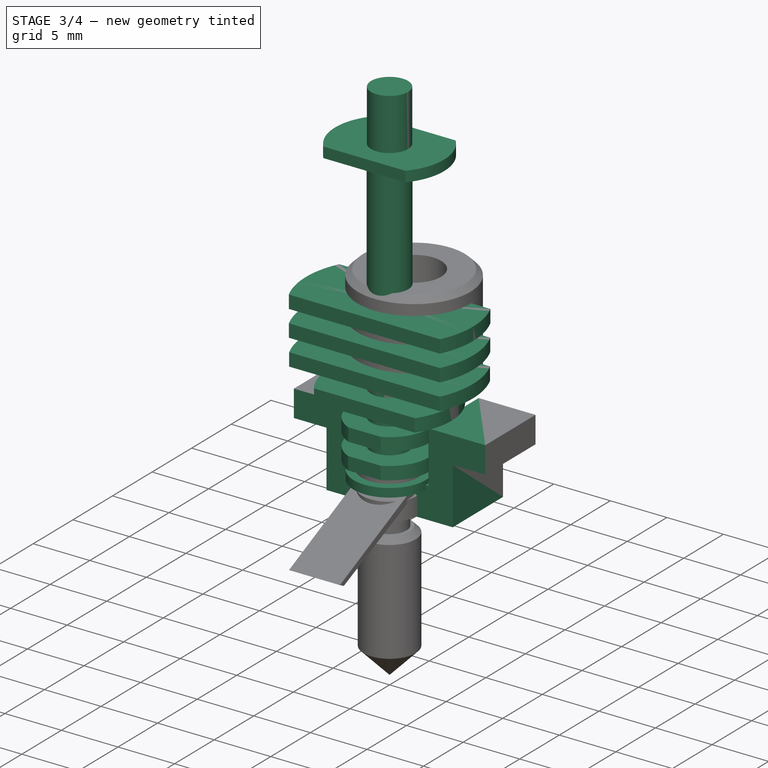
[diagram: stage 3 of 4 — iso view after this stage's code; geometry added in this stage tinted green]
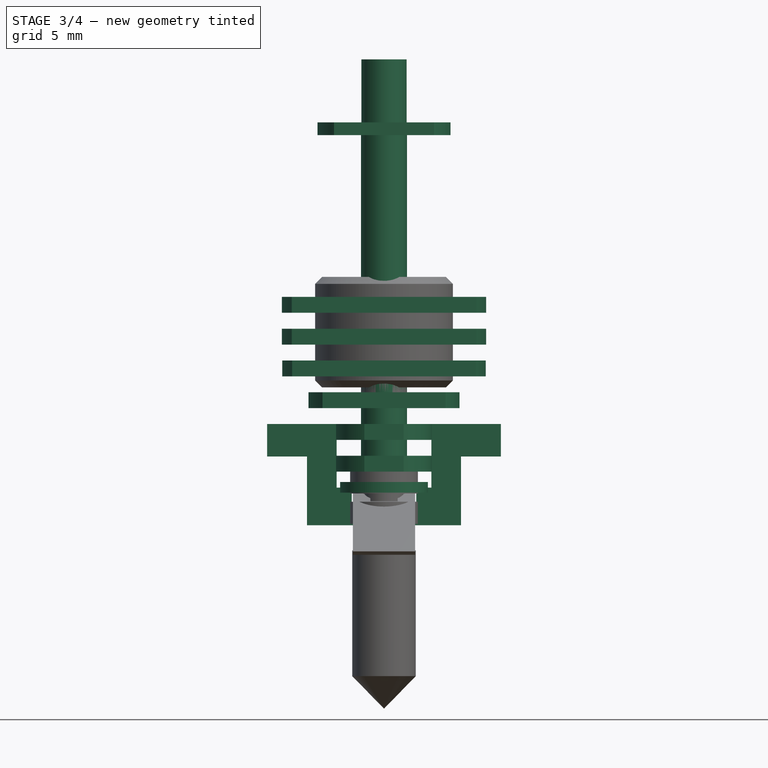
[diagram: stage 3 of 4 — front view after this stage's code; geometry added in this stage tinted green]
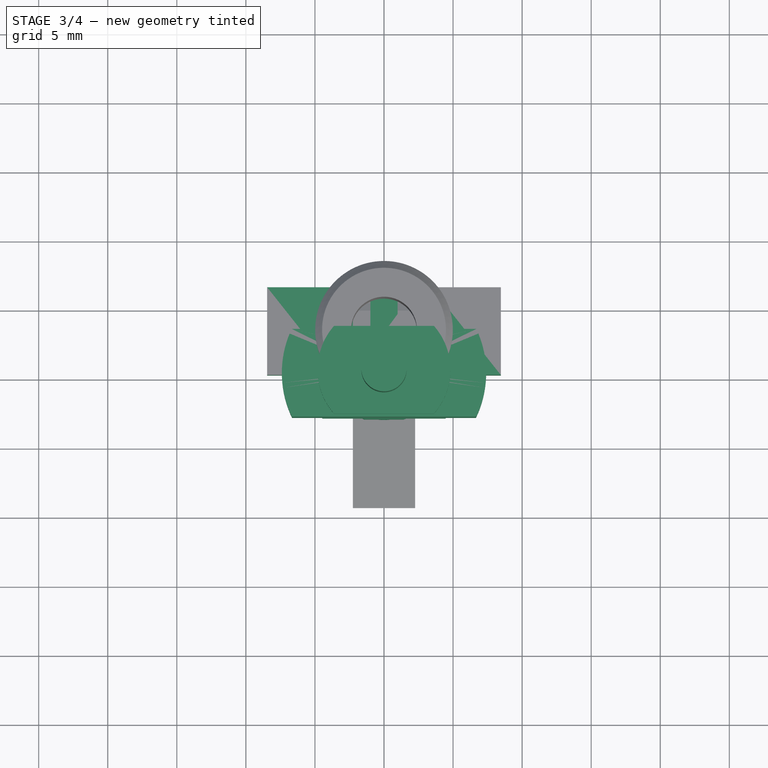
[diagram: stage 3 of 4 — top view after this stage's code; geometry added in this stage tinted green]
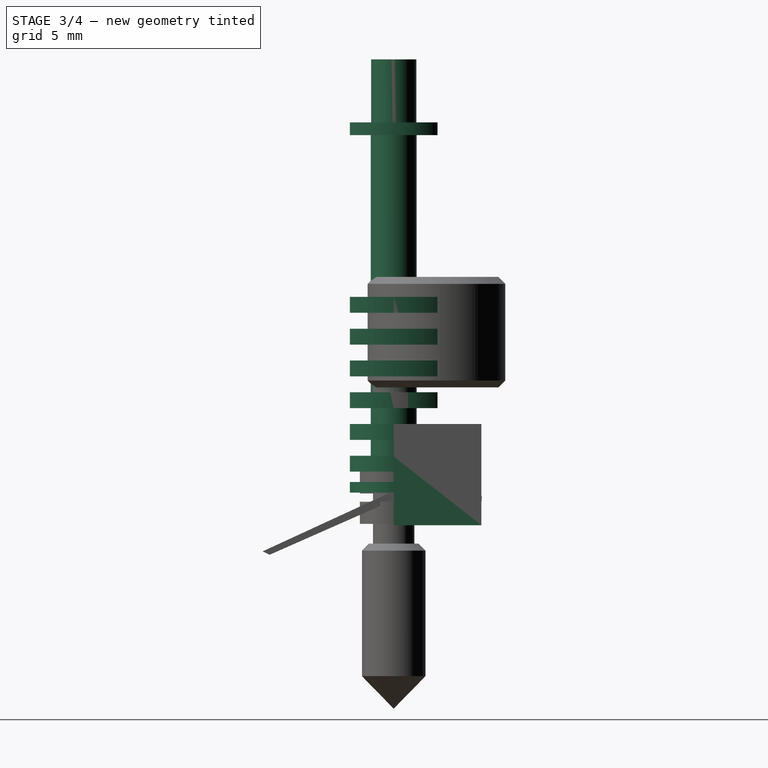
[diagram: stage 3 of 4 — right view after this stage's code; geometry added in this stage tinted green]
FEATURE [PartDesign::Body] Body001  label="Main Body"
  Group = -> [Sketch004,Pad003,Sketch005,Pocket]
  Origin = -> Origin001
  Tip = -> Pocket
FEATURE [Sketcher::SketchObject] Sketch006
  FullyConstrained = false
  MapMode = 5
  Placement = pos=(0,0,0) rot=(1,0,0;1.5708rad)
  Support = -> [XZ_Plane002]
  sketch-geometry (18):
    g0: LineSegment StartX=5.57736 StartY=-17.9751 StartZ=0 EndX=0 EndY=-17.9751 EndZ=0
    g1: LineSegment StartX=0 StartY=-17.9751 StartZ=0 EndX=-5.57736 EndY=-17.9751 EndZ=0
    g2: LineSegment StartX=5.57736 StartY=-17.9751 StartZ=0 EndX=5.57736 EndY=-12.9994 EndZ=0
    g3: LineSegment StartX=5.57736 StartY=-12.9994 StartZ=0 EndX=8.45725 EndY=-12.9994 EndZ=0
    g4: LineSegment StartX=8.45725 StartY=-12.9994 StartZ=0 EndX=8.45725 EndY=-10.6494 EndZ=0
    g5: LineSegment StartX=-5.57736 StartY=-17.9751 StartZ=0 EndX=-5.57736 EndY=-12.9994 EndZ=0
    g6: LineSegment StartX=-5.57736 StartY=-12.9994 StartZ=0 EndX=-8.45725 EndY=-12.9994 EndZ=0
    g7: LineSegment StartX=-8.45725 StartY=-12.9994 StartZ=0 EndX=-8.45725 EndY=-10.6494 EndZ=0
    g8: LineSegment StartX=-3.42646 StartY=-15.25 StartZ=0 EndX=-3.42646 EndY=-10.6494 EndZ=0
    g9: LineSegment StartX=3.42646 StartY=-15.25 StartZ=0 EndX=3.42646 EndY=-10.6494 EndZ=0
    g10: LineSegment StartX=-8.45725 StartY=-10.6494 StartZ=0 EndX=-3.42646 EndY=-10.6494 EndZ=0
    g11: LineSegment StartX=3.42646 StartY=-10.6494 StartZ=0 EndX=8.45725 EndY=-10.6494 EndZ=0
    g12: LineSegment StartX=3.42646 StartY=-12.9994 StartZ=0 EndX=5.57736 EndY=-12.9994 EndZ=0
    g13: LineSegment StartX=-3.42646 StartY=-15.25 StartZ=0 EndX=-2.33543 EndY=-15.25 EndZ=0
    g14: LineSegment StartX=3.42646 StartY=-15.25 StartZ=0 EndX=2.33543 EndY=-15.25 EndZ=0
    g15: LineSegment StartX=-2.33543 StartY=-15.25 StartZ=0 EndX=-2.33543 EndY=-16.3187 EndZ=0
    g16: LineSegment StartX=2.33543 StartY=-15.25 StartZ=0 EndX=2.33543 EndY=-16.3187 EndZ=0
    g17: LineSegment StartX=2.33543 StartY=-16.3187 StartZ=0 EndX=-2.33543 EndY=-16.3187 EndZ=0
  constraints (47):
    c: PointOnObject(g0,g-2)
    c: Horizontal(g0)
    c: Coincident(g1,g0)
    c: Horizontal(g1)
    c: Equal(g0,g1)
    c: Coincident(g2,g0)
    c: Vertical(g2)
    c: Coincident(g3,g2)
    c: Horizontal(g3)
    c: Coincident(g4,g3)
    c: Vertical(g4)
    c: Coincident(g5,g1)
    c: Vertical(g5)
    c: Coincident(g6,g5)
    c: Horizontal(g6)
    c: Coincident(g7,g6)
    c: Vertical(g7)
    c: Equal(g3,g6)
    c: Equal(g7,g4)
    c: Equal(g2,g5)
    c: DistanceY(g4,g4) = 2.35
    c: Vertical(g8)
    c: Vertical(g9)
    c: Coincident(g10,g7)
    c: Coincident(g10,g8)
    c: Horizontal(g10)
    c: Coincident(g11,g9)
    c: Horizontal(g11)
    c: Coincident(g4,g11)
    c: Equal(g11,g10)
    c: Coincident(g12,g2)
    c: Horizontal(g12)
    c: Coincident(g13,g8)
    c: Horizontal(g13)
    c: Coincident(g14,g9)
    c: Horizontal(g14)
    c: Coincident(g15,g13)
    c: Vertical(g15)
    c: Coincident(g16,g14)
    c: Vertical(g16)
    c: Coincident(g17,g16)
    c: Coincident(g17,g15)
    c: Horizontal(g17)
    c: Equal(g14,g13)
    c: Equal(g16,g15)
    c: PointOnObject(g12,g9)
    c: DistanceY(g14,g-1) = 15.25
FEATURE [PartDesign::Pad] Pad004
  Direction = (0,-1,-2e-16)
  Length = 6.35
  Length2 = 10
  Placement = pos=(0,0,0) rot=(1,0,0;1.5708rad)
  Profile = -> Sketch006
  ReferenceAxis = -> Sketch006 [N_Axis]
  Reversed = true
  Type = 0
  expr: Length = Pad003.Length
FEATURE [PartDesign::Body] Body002  label="HeatbrekThing"
  Group = -> [Sketch006,Pad004]
  Origin = -> Origin002
  Tip = -> Pad004
FEATURE [Sketcher::SketchObject] Sketch007
  FullyConstrained = false
  MapMode = 5
  Placement = pos=(0,0,0) rot=(1,0,0;1.5708rad)
  Support = -> [XZ_Plane003]
  sketch-geometry (34):
    g0: LineSegment StartX=3.175 StartY=-15.6146 StartZ=0 EndX=3.175 EndY=-14.8503 EndZ=0
    g1: LineSegment StartX=3.175 StartY=-14.8503 StartZ=0 EndX=1.71021 EndY=-14.8503 EndZ=0
    g2: LineSegment StartX=1.71021 StartY=-14.8503 StartZ=0 EndX=1.71021 EndY=-14.0971 EndZ=0
    g3: LineSegment StartX=1.71021 StartY=-14.0971 StartZ=0 EndX=3.47938 EndY=-14.0971 EndZ=0
    g4: LineSegment StartX=3.47938 StartY=-14.0971 StartZ=0 EndX=3.47938 EndY=-12.9471 EndZ=0
    g5: LineSegment StartX=3.47938 StartY=-12.9471 StartZ=0 EndX=1.66108 EndY=-12.9471 EndZ=0
    g6: LineSegment StartX=1.66108 StartY=-12.9471 StartZ=0 EndX=1.66108 EndY=-11.7971 EndZ=0
    g7: LineSegment StartX=1.66108 StartY=-11.7971 StartZ=0 EndX=3.47938 EndY=-11.7971 EndZ=0
    g8: LineSegment StartX=3.47938 StartY=-11.7971 StartZ=0 EndX=3.47938 EndY=-10.6471 EndZ=0
    g9: LineSegment StartX=3.47938 StartY=-10.6471 StartZ=0 EndX=1.66108 EndY=-10.6471 EndZ=0
    g10: LineSegment StartX=1.66108 StartY=-10.6471 StartZ=0 EndX=1.66108 EndY=-9.4971 EndZ=0
    g11: LineSegment StartX=1.66108 StartY=-9.4971 StartZ=0 EndX=5.46954 EndY=-9.4971 EndZ=0
    g12: LineSegment StartX=5.46954 StartY=-9.4971 StartZ=0 EndX=5.46954 EndY=-8.3471 EndZ=0
    g13: LineSegment StartX=5.46954 StartY=-8.3471 StartZ=0 EndX=1.66108 EndY=-8.3471 EndZ=0
    g14: LineSegment StartX=3.175 StartY=-15.6146 StartZ=0 EndX=0 EndY=-15.6146 EndZ=0
    g15: LineSegment StartX=1.66108 StartY=-8.3471 StartZ=0 EndX=1.66108 EndY=-7.1971 EndZ=0
    g16: LineSegment StartX=1.66108 StartY=-7.1971 StartZ=0 EndX=7.36972 EndY=-7.1971 EndZ=0
    g17: LineSegment StartX=7.36972 StartY=-7.1971 StartZ=0 EndX=7.36972 EndY=-6.0471 EndZ=0
    g18: LineSegment StartX=7.36972 StartY=-6.0471 StartZ=0 EndX=1.66108 EndY=-6.0471 EndZ=0
    g19: LineSegment StartX=1.66108 StartY=-6.0471 StartZ=0 EndX=1.66108 EndY=-4.8971 EndZ=0
    g20: LineSegment StartX=1.66108 StartY=-4.8971 StartZ=0 EndX=7.39224 EndY=-4.8971 EndZ=0
    g21: LineSegment StartX=7.39224 StartY=-4.8971 StartZ=0 EndX=7.39224 EndY=-3.7471 EndZ=0
    g22: LineSegment StartX=7.39224 StartY=-3.7471 StartZ=0 EndX=1.66108 EndY=-3.7471 EndZ=0
    g23: LineSegment StartX=1.66108 StartY=-3.7471 StartZ=0 EndX=1.66108 EndY=-2.5971 EndZ=0
    g24: LineSegment StartX=1.66108 StartY=-2.5971 StartZ=0 EndX=7.39746 EndY=-2.5971 EndZ=0
    g25: LineSegment StartX=7.39746 StartY=-2.5971 StartZ=0 EndX=7.39746 EndY=-1.4471 EndZ=0
    g26: LineSegment StartX=7.39746 StartY=-1.4471 StartZ=0 EndX=1.66108 EndY=-1.4471 EndZ=0
    g27: LineSegment StartX=1.66108 StartY=-1.4471 StartZ=0 EndX=1.66108 EndY=10.2699 EndZ=0
    g28: LineSegment StartX=1.66108 StartY=10.2699 StartZ=0 EndX=4.81262 EndY=10.2699 EndZ=0
    g29: LineSegment StartX=4.81262 StartY=10.2699 StartZ=0 EndX=4.81262 EndY=11.1917 EndZ=0
    g30: LineSegment StartX=4.81262 StartY=11.1917 StartZ=0 EndX=1.63942 EndY=11.1917 EndZ=0
    g31: LineSegment StartX=1.63942 StartY=11.1917 StartZ=0 EndX=1.63942 EndY=15.7525 EndZ=0
    g32: LineSegment StartX=1.63942 StartY=15.7525 StartZ=0 EndX=0 EndY=15.7525 EndZ=0
    g33: LineSegment StartX=0 StartY=15.7525 StartZ=0 EndX=0 EndY=-15.6146 EndZ=0
  constraints (86):
    c: Vertical(g0)
    c: Coincident(g1,g0)
    c: Horizontal(g1)
    c: Coincident(g2,g1)
    c: Vertical(g2)
    c: Coincident(g3,g2)
    c: Horizontal(g3)
    c: Coincident(g4,g3)
    c: Vertical(g4)
    c: Coincident(g5,g4)
    c: Horizontal(g5)
    c: Coincident(g6,g5)
    c: Vertical(g6)
    c: Horizontal(g7)
    c: Coincident(g8,g7)
    c: Vertical(g8)
    c: Coincident(g9,g8)
    c: Horizontal(g9)
    c: Coincident(g10,g9)
    c: Vertical(g10)
    c: Coincident(g11,g10)
    c: Horizontal(g11)
    c: Coincident(g12,g11)
    c: Vertical(g12)
    c: Coincident(g13,g12)
    c: Horizontal(g13)
    c: Equal(g4,g6)
    c: Equal(g6,g8)
    c: Equal(g8,g10)
    c: Equal(g10,g12)
    c: Equal(g5,g7)
    c: Equal(g7,g9)
    c: Equal(g11,g13)
    c: Coincident(g6,g7)
    c: DistanceY(g4,g4) = 1.15
    c: Coincident(g14,g0)
    c: PointOnObject(g14,g-2)
    c: Horizontal(g14)
    c: Vertical(g15)
    c: Coincident(g16,g15)
    c: Horizontal(g16)
    c: Coincident(g17,g16)
    c: Vertical(g17)
    c: Coincident(g18,g17)
    c: Horizontal(g18)
    c: Equal(g15,g17)
    c: Equal(g16,g18)
    c: Coincident(g13,g15)
    c: Equal(g15,g12)
    c: Vertical(g19)
    c: Coincident(g20,g19)
    c: Horizontal(g20)
    c: Coincident(g21,g20)
    c: Vertical(g21)
    c: Coincident(g22,g21)
    c: Horizontal(g22)
    c: Equal(g19,g21)
    c: Equal(g20,g22)
    c: Coincident(g18,g19)
    c: Equal(g19,g17)
    c: Vertical(g23)
    c: Coincident(g24,g23)
    c: Horizontal(g24)
    c: Coincident(g25,g24)
    c: Vertical(g25)
    c: Coincident(g26,g25)
    c: Horizontal(g26)
    c: Equal(g23,g25)
    c: Equal(g24,g26)
    c: Coincident(g22,g23)
    c: Equal(g23,g19)
    c: Coincident(g27,g26)
    c: Vertical(g27)
    c: Coincident(g28,g27)
    c: Horizontal(g28)
    c: Coincident(g29,g28)
    c: Vertical(g29)
    c: Horizontal(g30)
    c: Coincident(g31,g30)
    c: Vertical(g31)
    c: Coincident(g32,g31)
    c: Horizontal(g32)
    c: Coincident(g33,g32)
    c: Coincident(g33,g14)
    c: Vertical(g33)
    c: Coincident(g29,g30)
FEATURE [PartDesign::Revolution] Revolution
  Angle = 360
  Axis = (0,2e-16,1)
  Base = (0,0,0)
  Placement = pos=(0,0,0) rot=(1,0,0;1.5708rad)
  Profile = -> Sketch007
  ReferenceAxis = -> Sketch007 [V_Axis]
  Reversed = true
FEATURE [Sketcher::SketchObject] Sketch008
  FullyConstrained = false
  MapMode = 5
  Support = -> [XY_Plane003]
  expr: Constraints[10] = Pad003.Length
  sketch-geometry (10):
    g0: LineSegment StartX=-23.05 StartY=-3.175 StartZ=0 EndX=-23.05 EndY=3.175 EndZ=0
    g1: LineSegment StartX=-23.05 StartY=3.175 StartZ=0 EndX=23.05 EndY=3.175 EndZ=0
    g2: LineSegment StartX=23.05 StartY=3.175 StartZ=0 EndX=23.05 EndY=-3.175 EndZ=0
    g3: LineSegment StartX=23.05 StartY=-3.175 StartZ=0 EndX=-23.05 EndY=-3.175 EndZ=0
    g4: GeomPoint X=0 Y=0 Z=0
    g5: LineSegment StartX=-31.1858 StartY=-17.783 StartZ=0 EndX=-31.1858 EndY=17.783 EndZ=0
    g6: LineSegment StartX=-31.1858 StartY=17.783 StartZ=0 EndX=31.1858 EndY=17.783 EndZ=0
    g7: LineSegment StartX=31.1858 StartY=17.783 StartZ=0 EndX=31.1858 EndY=-17.783 EndZ=0
    g8: LineSegment StartX=31.1858 StartY=-17.783 StartZ=0 EndX=-31.1858 EndY=-17.783 EndZ=0
    g9: GeomPoint X=0 Y=0 Z=0
  constraints (22):
    c: Coincident(g0,g1)
    c: Coincident(g1,g2)
    c: Coincident(g2,g3)
    c: Coincident(g3,g0)
    c: Horizontal(g1)
    c: Horizontal(g3)
    c: Vertical(g0)
    c: Vertical(g2)
    c: Symmetric(g1,g0,g4)
    c: Coincident(g4,g-1)
    c: DistanceY(g2,g2) = 6.35
    c: DistanceX(g1,g1) = 46.1
    c: Coincident(g5,g6)
    c: Coincident(g6,g7)
    c: Coincident(g7,g8)
    c: Coincident(g8,g5)
    c: Horizontal(g6)
    c: Horizontal(g8)
    c: Vertical(g5)
    c: Vertical(g7)
    c: Symmetric(g6,g5,g9)
    c: Coincident(g9,g4)
FEATURE [PartDesign::Pocket] Pocket001
  BaseFeature = -> Revolution
  Direction = (0,0,-1)
  Length = 60
  Length2 = 60
  Placement = pos=(0,0,0) rot=(1,0,0;1.5708rad)
  Profile = -> Sketch008
  ReferenceAxis = -> Sketch008 [N_Axis]
  Type = 4
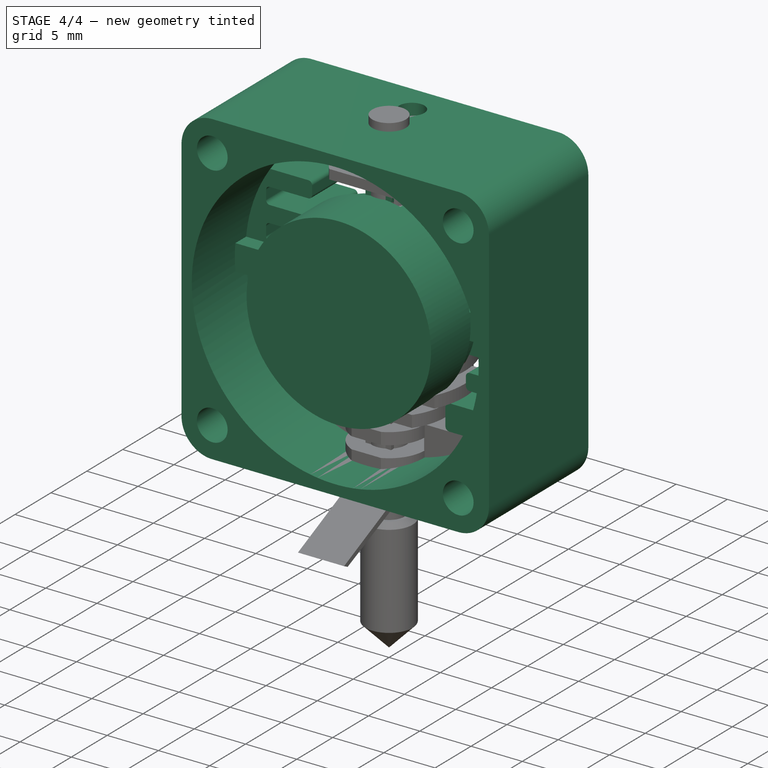
[diagram: stage 4 of 4 — iso view after this stage's code; geometry added in this stage tinted green]
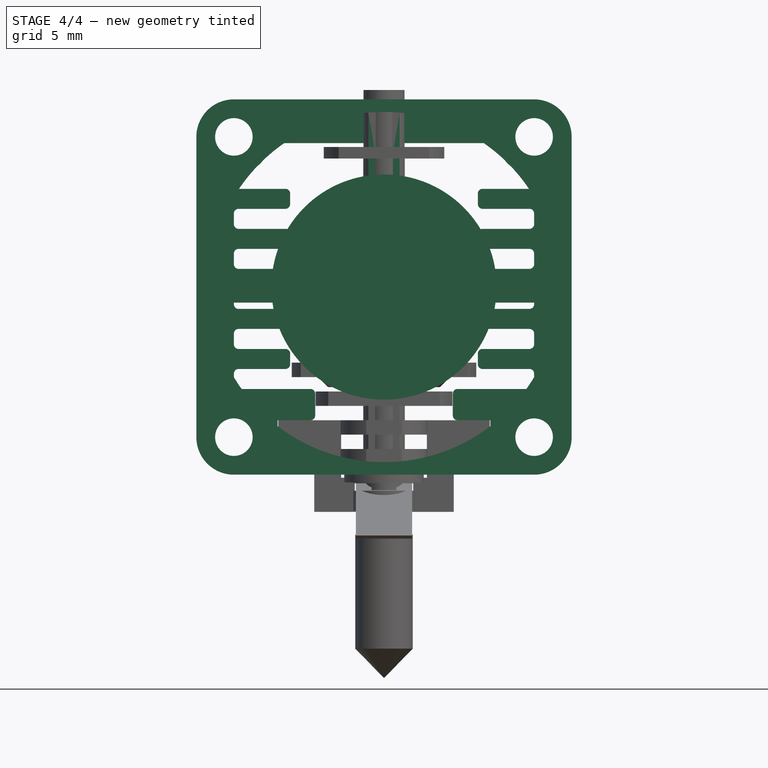
[diagram: stage 4 of 4 — front view after this stage's code; geometry added in this stage tinted green]
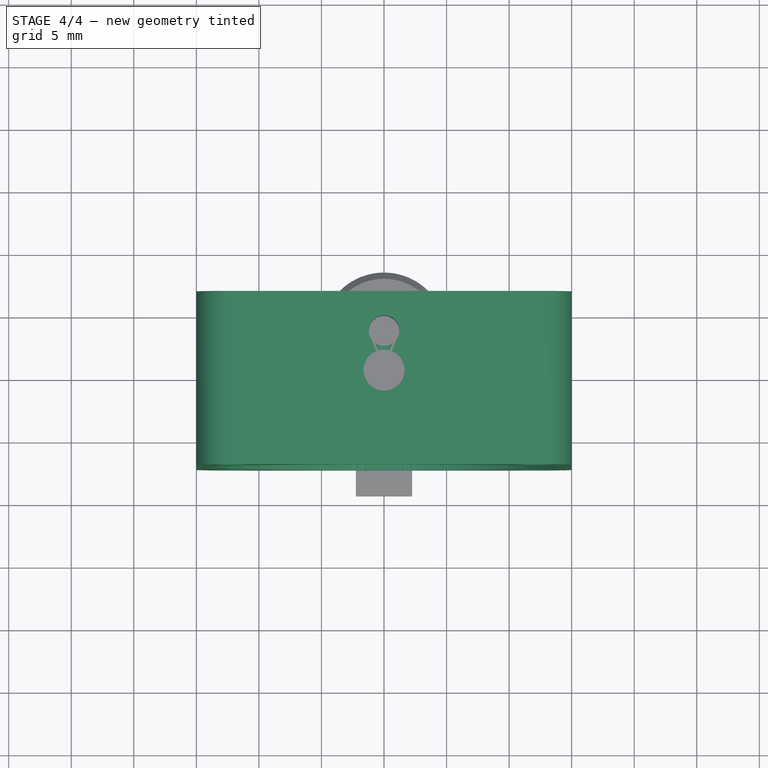
[diagram: stage 4 of 4 — top view after this stage's code; geometry added in this stage tinted green]
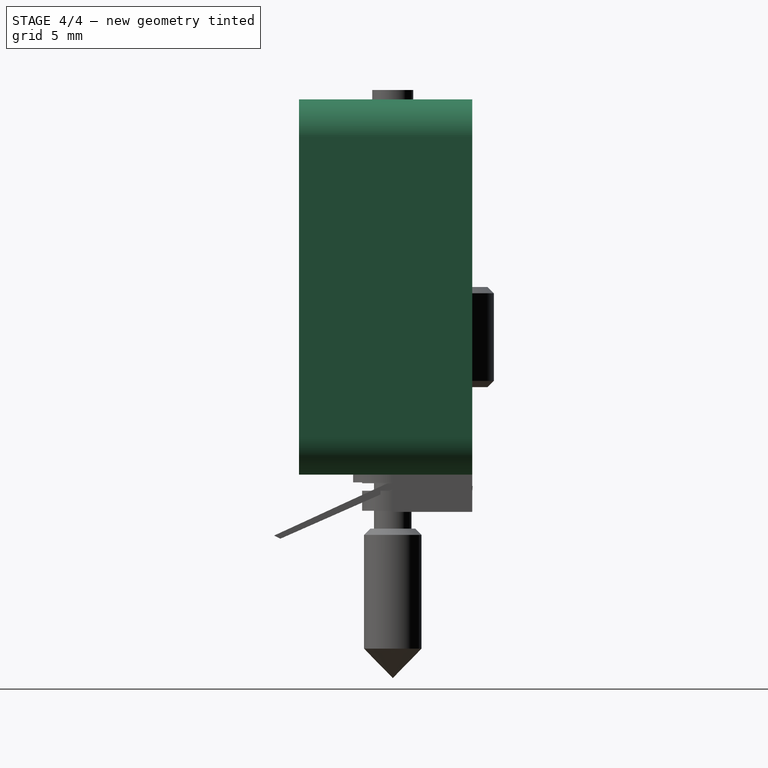
[diagram: stage 4 of 4 — right view after this stage's code; geometry added in this stage tinted green]
FEATURE [Spreadsheet::Sheet] Spreadsheet
  cells = B2='Name; C2='Value; D2='Calculated; E2='Notes; G2='The main body is 2 stacked plates .125" in thick. Use 6061 from SendCutSent. Bolt together for machining.; B3='Filament Dimensions; B4='Filament_Diameter; C4(Filament_Diameter)==1.75 mm; B5='Filament_Path_Diameter; C5(Filament_Path_Diameter)==C4 + 0.15 mm; B7='Nozzle Values; B8='Nozzle_Overall_Length; C8(Nozzle_Overall_Length)==35 mm; E8='Includes the length of the heatbreak; B10='Nozzle_Heatpath_Diameter; C10(Nozzle_Heatpath_Diameter)==4.25 mm; E10='Heatpath is the hot part. Rename this later; B11='Nozzle_Heatpath_Thickness; C11(Nozzle_Heatpath_Thickness)==(C10 - C5) / 2; D11='Y; B12='Nozzle_Heatpath_Length; C12(Nozzle_Heatpath_Length)==25 mm; B14='Nozzle_Heatbreak_Diameter; C14(Nozzle_Heatbreak_Diameter)==2.45 mm; E14='Titanium will work best here; B15='Nozzle_Heatbreak_Thickness; C15(Nozzle_Heatbreak_Thickness)==(C14 - C5) / 2; D15='Y; B16='Nozzle_Heatbreak_Length; C16(Nozzle_Heatbreak_Length)==C8 - C12; D16='Y; B17='Nozzle_HeatBreak_Inset; C17(Nozzle_HeatBreak_Inset)==5 mm; E17='The amount of heatbreak within the nozzle heatpath; B18='Nozzle_Wall_Thick_At_Heatbreak; C18(Nozzle_Wall_Thick_At_Heatbreak)==(C10 - C14) / 2; D18='Y; E18='The nozzle wall thickness where the heatbreak is inserted
FEATURE [Sketcher::SketchObject] Sketch
  FullyConstrained = true
  MapMode = 5
  Placement = pos=(0,0,0) rot=(1,0,0;1.5708rad)
  Support = -> [XZ_Plane]
  sketch-geometry (23):
    g0: LineSegment StartX=-15 StartY=-12 StartZ=0 EndX=-15 EndY=12 EndZ=0
    g1: LineSegment StartX=-12 StartY=15 StartZ=0 EndX=12 EndY=15 EndZ=0
    g2: LineSegment StartX=15 StartY=12 StartZ=0 EndX=15 EndY=-12 EndZ=0
    g3: LineSegment StartX=12 StartY=-15 StartZ=0 EndX=-12 EndY=-15 EndZ=0
    g4: GeomPoint X=0 Y=0 Z=0
    g5: Circle CenterX=0 CenterY=0 CenterZ=0 NormalX=0 NormalY=0 NormalZ=1 AngleXU=0 Radius=14
    g6: LineSegment StartX=-12 StartY=-12 StartZ=0 EndX=-12 EndY=12 EndZ=0
    g7: LineSegment StartX=-12 StartY=12 StartZ=0 EndX=12 EndY=12 EndZ=0
    g8: LineSegment StartX=12 StartY=12 StartZ=0 EndX=12 EndY=-12 EndZ=0
    g9: LineSegment StartX=12 StartY=-12 StartZ=0 EndX=-12 EndY=-12 EndZ=0
    g10: GeomPoint X=0 Y=0 Z=0
    g11: Circle CenterX=-12 CenterY=12 CenterZ=0 NormalX=0 NormalY=0 NormalZ=1 AngleXU=0 Radius=1.5
    g12: Circle CenterX=12 CenterY=12 CenterZ=0 NormalX=0 NormalY=0 NormalZ=1 AngleXU=0 Radius=1.5
    g13: Circle CenterX=12 CenterY=-12 CenterZ=0 NormalX=0 NormalY=0 NormalZ=1 AngleXU=0 Radius=1.5
    g14: Circle CenterX=-12 CenterY=-12 CenterZ=0 NormalX=0 NormalY=0 NormalZ=1 AngleXU=0 Radius=1.5
    g15: ArcOfCircle CenterX=12 CenterY=12 CenterZ=0 NormalX=0 NormalY=0 NormalZ=1 AngleXU=0 Radius=3 StartAngle=0 EndAngle=1.5708
    g16: GeomPoint X=15 Y=15 Z=0
    g17: ArcOfCircle CenterX=12 CenterY=-12 CenterZ=0 NormalX=0 NormalY=0 NormalZ=1 AngleXU=0 Radius=3 StartAngle=4.71239 EndAngle=6.28319
    g18: GeomPoint X=15 Y=-15 Z=0
    g19: ArcOfCircle CenterX=-12 CenterY=-12 CenterZ=0 NormalX=0 NormalY=0 NormalZ=1 AngleXU=0 Radius=3 StartAngle=3.14159 EndAngle=4.71239
    g20: GeomPoint X=-15 Y=-15 Z=0
    g21: ArcOfCircle CenterX=-12 CenterY=12 CenterZ=0 NormalX=0 NormalY=0 NormalZ=1 AngleXU=0 Radius=3 StartAngle=1.5708 EndAngle=3.14159
    g22: GeomPoint X=-15 Y=15 Z=0
  constraints (49):
    c: Horizontal(g1)
    c: Horizontal(g3)
    c: Vertical(g0)
    c: Vertical(g2)
    c: Symmetric(g16,g20,g4)
    c: Coincident(g4,g-1)
    c: Coincident(g5,g4)
    c: Coincident(g6,g7)
    c: Coincident(g7,g8)
    c: Coincident(g8,g9)
    c: Coincident(g9,g6)
    c: Horizontal(g7)
    c: Horizontal(g9)
    c: Vertical(g6)
    c: Vertical(g8)
    c: Symmetric(g7,g6,g10)
    c: Coincident(g10,g5)
    c: Equal(g7,g8)
    c: Distance(g18,g16) = 30
    c: Distance(g8) = 24
    c: Coincident(g11,g6)
    c: Coincident(g12,g7)
    c: Coincident(g13,g8)
    c: Coincident(g14,g6)
    c: Equal(g12,g13)
    c: Equal(g14,g13)
    c: Equal(g14,g11)
    c: Diameter(g12) = 3
    c: Diameter(g5) = 28
    c: PointOnObject(g16,g1)
    c: PointOnObject(g16,g2)
    c: Tangent(g1,g15) = 1.5708
    c: Tangent(g2,g15) = 1.5708
    c: PointOnObject(g18,g2)
    c: PointOnObject(g18,g3)
    c: Tangent(g2,g17) = 1.5708
    c: Tangent(g3,g17) = 1.5708
    c: PointOnObject(g20,g3)
    c: PointOnObject(g20,g0)
    c: Tangent(g3,g19) = 1.5708
    c: Tangent(g0,g19) = 1.5708
    c: PointOnObject(g22,g0)
    c: PointOnObject(g22,g1)
    c: Tangent(g0,g21) = 1.5708
    c: Tangent(g1,g21) = 1.5708
    c: Equal(g1,g2)
    c: Equal(g15,g21)
    c: Equal(g21,g19)
    c: Coincident(g7,g15)
FEATURE [PartDesign::Pad] Pad
  Direction = (0,-1,2e-16)
  Length = 7.5
  Length2 = 10
  Placement = pos=(0,0,0) rot=(1,0,0;1.5708rad)
  Profile = -> Sketch
  ReferenceAxis = -> Sketch [N_Axis]
  Type = 0
FEATURE [Sketcher::SketchObject] Sketch001
  FullyConstrained = true
  MapMode = 5
  Placement = pos=(0,0,0) rot=(1,0,0;1.5708rad)
  Support = -> [XZ_Plane]
  sketch-geometry (18):
    g0: ArcOfCircle CenterX=0 CenterY=0 CenterZ=0 NormalX=0 NormalY=0 NormalZ=1 AngleXU=0 Radius=8.5 StartAngle=3.28919 EndAngle=4.56479
    g1: LineSegment StartX=-1.25 StartY=-14.75 StartZ=0 EndX=-1.25 EndY=-8.40759 EndZ=0
    g2: LineSegment StartX=-1.25 StartY=14.75 StartZ=0 EndX=1.25 EndY=14.75 EndZ=0
    g3: LineSegment StartX=1.25 StartY=14.75 StartZ=0 EndX=1.25 EndY=8.40759 EndZ=0
    g4: LineSegment StartX=1.25 StartY=-14.75 StartZ=0 EndX=-1.25 EndY=-14.75 EndZ=0
    g5: GeomPoint X=0 Y=0 Z=0
    g6: LineSegment StartX=-14.75 StartY=-1.25 StartZ=0 EndX=-14.75 EndY=1.25 EndZ=0
    g7: LineSegment StartX=-14.75 StartY=1.25 StartZ=0 EndX=-8.40759 EndY=1.25 EndZ=0
    g8: LineSegment StartX=14.75 StartY=1.25 StartZ=0 EndX=14.75 EndY=-1.25 EndZ=0
    g9: LineSegment StartX=14.75 StartY=-1.25 StartZ=0 EndX=8.40759 EndY=-1.25 EndZ=0
    g10: GeomPoint X=0 Y=0 Z=0
    g11: LineSegment StartX=8.40759 StartY=1.25 StartZ=0 EndX=14.75 EndY=1.25 EndZ=0
    g12: LineSegment StartX=-8.40759 StartY=-1.25 StartZ=0 EndX=-14.75 EndY=-1.25 EndZ=0
    g13: LineSegment StartX=1.25 StartY=-8.40759 StartZ=0 EndX=1.25 EndY=-14.75 EndZ=0
    g14: LineSegment StartX=-1.25 StartY=8.40759 StartZ=0 EndX=-1.25 EndY=14.75 EndZ=0
    g15: ArcOfCircle CenterX=0 CenterY=0 CenterZ=0 NormalX=0 NormalY=0 NormalZ=1 AngleXU=0 Radius=8.5 StartAngle=0.147594 EndAngle=1.4232
    g16: ArcOfCircle CenterX=0 CenterY=0 CenterZ=0 NormalX=0 NormalY=0 NormalZ=1 AngleXU=0 Radius=8.5 StartAngle=1.71839 EndAngle=2.994
    g17: ArcOfCircle CenterX=0 CenterY=0 CenterZ=0 NormalX=0 NormalY=0 NormalZ=1 AngleXU=0 Radius=8.5 StartAngle=4.85998 EndAngle=6.13559
  constraints (49):
    c: Coincident(g0,g-1)
    c: Diameter(g0) = 17
    c: Coincident(g14,g2)
    c: Coincident(g2,g3)
    c: Coincident(g13,g4)
    c: Coincident(g4,g1)
    c: Horizontal(g2)
    c: Horizontal(g4)
    c: Vertical(g1)
    c: Symmetric(g2,g1,g5)
    c: Coincident(g5,g0)
    c: Coincident(g6,g7)
    c: Coincident(g11,g8)
    c: Coincident(g8,g9)
    c: Coincident(g12,g6)
    c: Horizontal(g7)
    c: Horizontal(g9)
    c: Vertical(g6)
    c: Vertical(g8)
    c: Symmetric(g11,g6,g10)
    c: Coincident(g10,g0)
    c: PointOnObject(g14,g0)
    c: Coincident(g16,g7)
    c: Coincident(g0,g12)
    c: Equal(g0,g15)
    c: Coincident(g17,g9)
    c: Coincident(g15,g11)
    c: Coincident(g0,g15)
    c: Equal(g15,g16)
    c: PointOnObject(g15,g3)
    c: PointOnObject(g16,g14)
    c: Coincident(g15,g16)
    c: Equal(g0,g17)
    c: Coincident(g0,g1)
    c: Coincident(g17,g13)
    c: Coincident(g0,g17)
    c: Equal(g2,g8)
    c: Equal(g8,g4)
    c: Equal(g4,g6)
    c: Vertical(g14)
    c: Vertical(g13)
    c: Horizontal(g11)
    c: Horizontal(g12)
    c: DistanceX(g6,g8) = 29.5
    c: DistanceY(g4,g2) = 29.5
    c: DistanceX(g14,g3) = 2.5
    c: Symmetric(g3,g0,g0)
    c: Equal(g3,g14)
    c: Equal(g11,g9)
FEATURE [PartDesign::Pad] Pad001
  BaseFeature = -> Pad
  Direction = (0,-1,2e-16)
  Length = 1.5
  Length2 = 10
  Placement = pos=(0,0,0) rot=(1,0,0;1.5708rad)
  Profile = -> Sketch001
  ReferenceAxis = -> Sketch001 [N_Axis]
  Type = 0
FEATURE [Sketcher::SketchObject] Sketch002
  FullyConstrained = true
  MapMode = 5
  Placement = pos=(0,-1.5,0) rot=(1,0,0;1.5708rad)
  Support = -> [Pad001]
  sketch-geometry (1):
    g0: Circle CenterX=0 CenterY=0 CenterZ=0 NormalX=0 NormalY=0 NormalZ=1 AngleXU=0 Radius=9
  constraints (2):
    c: Coincident(g0,g-1)
    c: Diameter(g0) = 18
FEATURE [PartDesign::Pad] Pad002
  BaseFeature = -> Pad001
  Direction = (0,-1,2e-16)
  Length = 5.5
  Length2 = 10
  Placement = pos=(0,0,0) rot=(1,0,0;1.5708rad)
  Profile = -> Sketch002
  ReferenceAxis = -> Sketch002 [N_Axis]
  Type = 0
FEATURE [Sketcher::SketchObject] Sketch005
  FullyConstrained = true
  MapMode = 5
  Support = -> [XY_Plane001]
  expr: Constraints[0] = Spreadsheet.Nozzle_Heatbreak_Diameter
  expr: Constraints[4] = Pad003.Length
  sketch-geometry (2):
    g0: Circle CenterX=0 CenterY=3.175 CenterZ=0 NormalX=0 NormalY=0 NormalZ=1 AngleXU=0 Radius=1.225
    g1: LineSegment StartX=0 StartY=0 StartZ=0 EndX=0 EndY=6.35 EndZ=0
  constraints (5):
    c: Diameter(g0) = 2.45
    c: Coincident(g1,g-1)
    c: Vertical(g1)
    c: Symmetric(g1,g1,g0)
    c: DistanceY(g1,g1) = 6.35
FEATURE [PartDesign::Pocket] Pocket
  BaseFeature = -> Pad003
  Direction = (0,0,-1)
  Length = 5
  Length2 = 5
  Placement = pos=(0,0,0) rot=(1,0,0;1.5708rad)
  Profile = -> Sketch005
  ReferenceAxis = -> Sketch005 [N_Axis]
  Reversed = true
  Type = 1
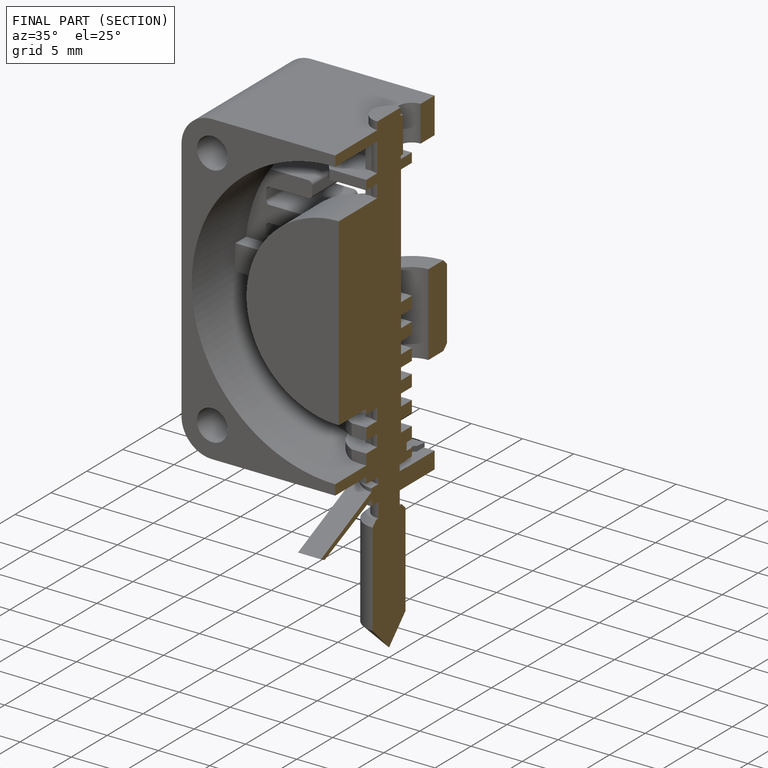
[diagram: finished part — half-section view (interior)]
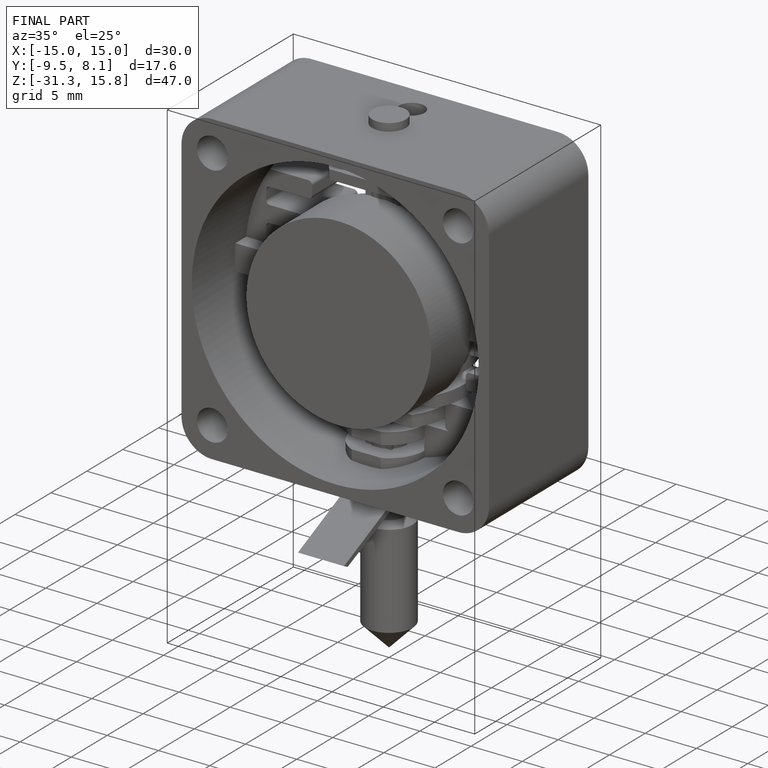
[diagram: finished part — iso view with bounding-box wireframe]
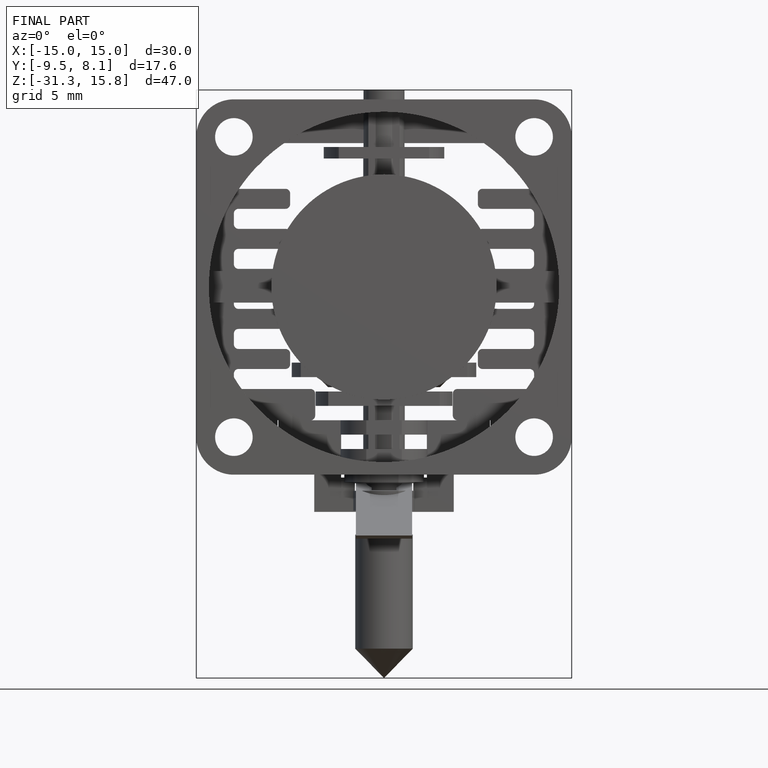
[diagram: finished part — front view with bounding-box wireframe]
